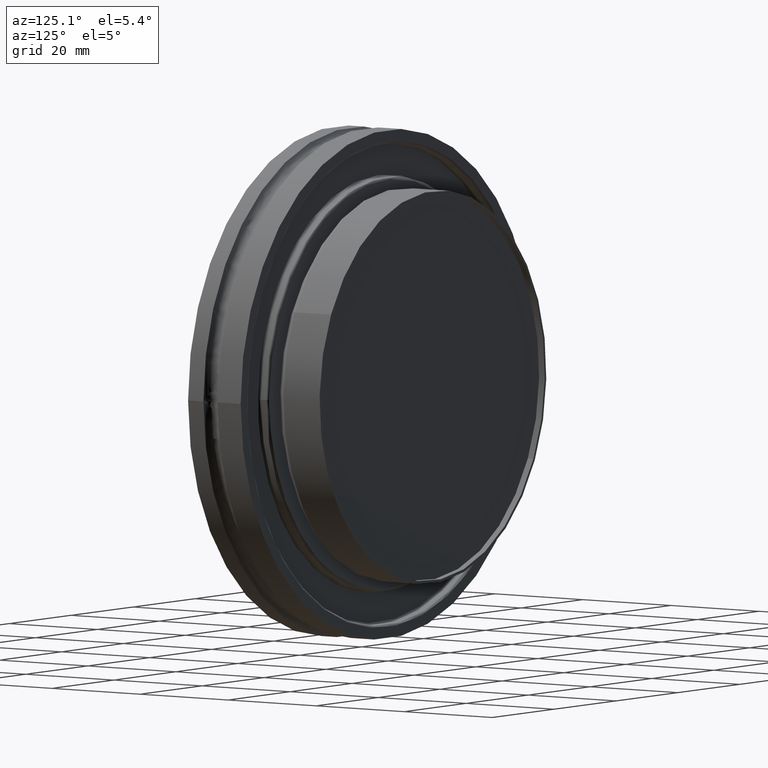
[diagram: clean part render]
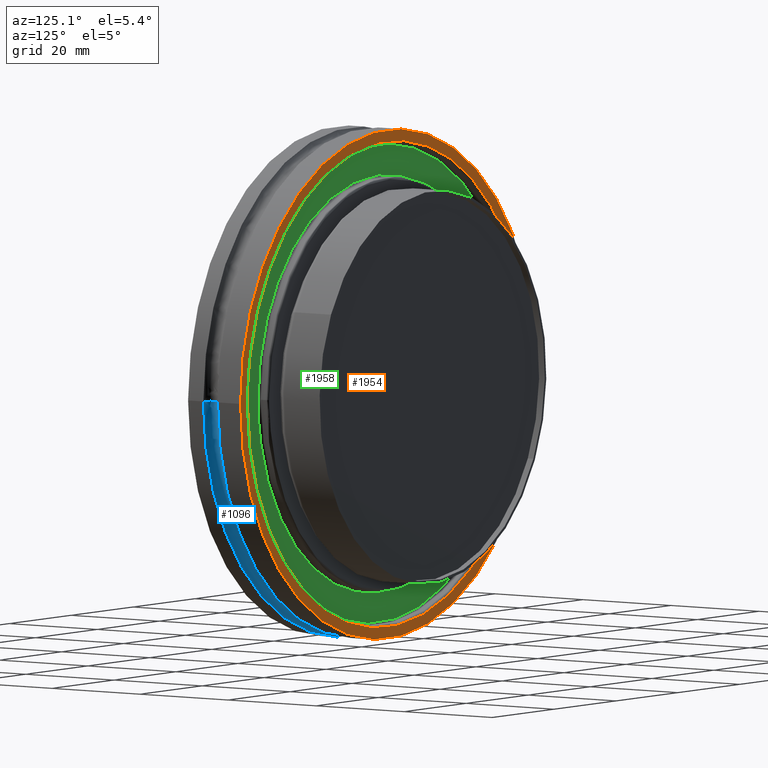
[diagram: same view with three faces highlighted in distinct colors, each labeled with its STEP entity id]
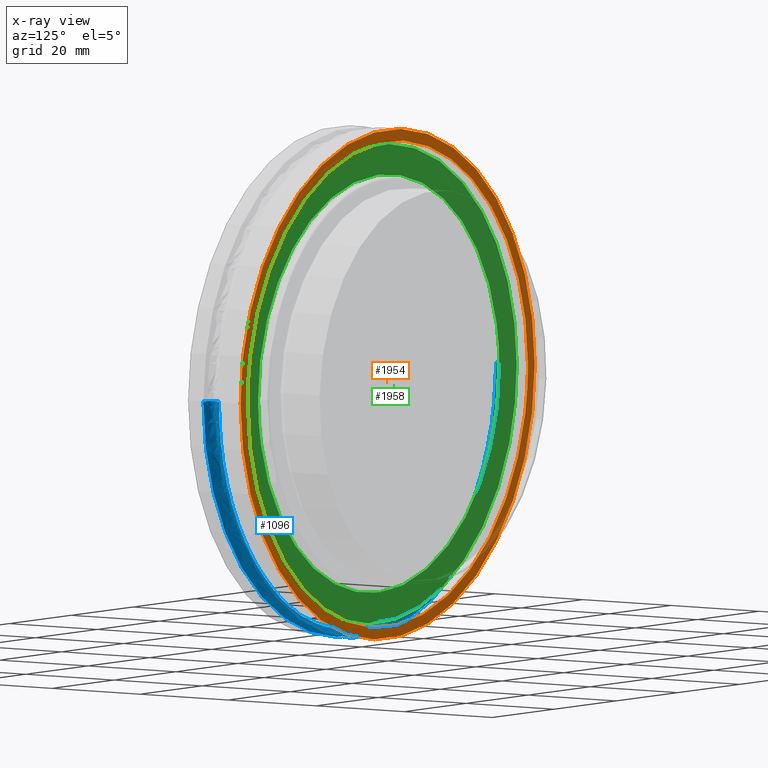
[diagram: x-ray of the same camera — body ghosted, the three highlighted faces saturated]
A machine part, auxiliary view with three faces highlighted in distinct colors.
The next image is the same camera in x-ray (body ghosted, the three faces saturated) — at least one of them is partly hidden behind the body in this view.
Their STEP definitions:

[orange] entity #1954 — the highlighted planar face has unit normal (0, -1, -0).
#50 = AXIS2_PLACEMENT_3D ( 'NONE', #1326, #1319, #1318 ) ;
#81 = FACE_BOUND ( 'NONE', #492, .T. ) ;
#84 = FACE_OUTER_BOUND ( 'NONE', #501, .T. ) ;
#204 = CIRCLE ( 'NONE', #611, 1.870000000000000100 ) ;
#271 = CIRCLE ( 'NONE', #660, 1.870000000000000100 ) ;
#312 = ORIENTED_EDGE ( 'NONE', *, *, #568, .F. ) ;
#313 = ORIENTED_EDGE ( 'NONE', *, *, #715, .F. ) ;
#314 = ORIENTED_EDGE ( 'NONE', *, *, #576, .F. ) ;
#315 = ORIENTED_EDGE ( 'NONE', *, *, #569, .F. ) ;
#484 = VERTEX_POINT ( 'NONE', #918 ) ;
#490 = VERTEX_POINT ( 'NONE', #828 ) ;
#492 = EDGE_LOOP ( 'NONE', ( #314, #315 ) ) ;
#501 = EDGE_LOOP ( 'NONE', ( #312, #313 ) ) ;
#568 = EDGE_CURVE ( 'NONE', #2015, #2003, #271, .T. ) ;
#569 = EDGE_CURVE ( 'NONE', #490, #484, #1128, .T. ) ;
#576 = EDGE_CURVE ( 'NONE', #484, #490, #1125, .T. ) ;
#611 = AXIS2_PLACEMENT_3D ( 'NONE', #1414, #1405, #1407 ) ;
#660 = AXIS2_PLACEMENT_3D ( 'NONE', #764, #762, #929 ) ;
#715 = EDGE_CURVE ( 'NONE', #2003, #2015, #204, .T. ) ;
#762 = DIRECTION ( 'NONE',  ( -0.0000000000000000000, -1.000000000000000000, -0.0000000000000000000 ) ) ;
#764 = CARTESIAN_POINT ( 'NONE',  ( 0.0000000000000000000, 0.2350000000000000100, 0.0000000000000000000 ) ) ;
#777 = CARTESIAN_POINT ( 'NONE',  ( 1.784999999999999500, 0.2350000000000000400, -3.569999999999999400 ) ) ;
#778 = CARTESIAN_POINT ( 'NONE',  ( 1.784999999999999900, 0.2350000000000000100, -2.185994536478025700E-016 ) ) ;
#817 = CARTESIAN_POINT ( 'NONE',  ( 1.784999999999999900, 0.2350000000000000100, -2.185994536478025700E-016 ) ) ;
#818 = CARTESIAN_POINT ( 'NONE',  ( 1.785000000000000800, 0.2350000000000000400, 3.569999999999999400 ) ) ;
#822 = CARTESIAN_POINT ( 'NONE',  ( -1.784999999999999900, 0.2350000000000000100, 0.0000000000000000000 ) ) ;
#828 = CARTESIAN_POINT ( 'NONE',  ( 1.784999999999999900, 0.2350000000000000100, -2.185994536478025700E-016 ) ) ;
#918 = CARTESIAN_POINT ( 'NONE',  ( -1.784999999999999900, 0.2350000000000000100, 0.0000000000000000000 ) ) ;
#923 = CARTESIAN_POINT ( 'NONE',  ( -1.785000000000000100, 0.2350000000000000400, -3.569999999999999400 ) ) ;
#929 = DIRECTION ( 'NONE',  ( 1.000000000000000000, 0.0000000000000000000, 0.0000000000000000000 ) ) ;
#951 = CARTESIAN_POINT ( 'NONE',  ( -1.785000000000000100, 0.2350000000000000400, 3.569999999999999400 ) ) ;
#1070 = CARTESIAN_POINT ( 'NONE',  ( -1.784999999999999900, 0.2350000000000000100, 0.0000000000000000000 ) ) ;
#1125 =( BOUNDED_CURVE ( )  B_SPLINE_CURVE ( 3, ( #1070, #951, #818, #817 ),
 .UNSPECIFIED., .F., .F. ) 
 B_SPLINE_CURVE_WITH_KNOTS ( ( 4, 4 ),
 ( 0.0000000000000000000, 0.5000000000000000000 ),
 .UNSPECIFIED. ) 
 CURVE ( )  GEOMETRIC_REPRESENTATION_ITEM ( )  RATIONAL_B_SPLINE_CURVE ( ( 1.000000000000000000, 0.3333333333333333700, 0.3333333333333333700, 1.000000000000000000 ) ) 
 REPRESENTATION_ITEM ( '' )  );
#1128 =( BOUNDED_CURVE ( )  B_SPLINE_CURVE ( 3, ( #778, #777, #923, #822 ),
 .UNSPECIFIED., .F., .F. ) 
 B_SPLINE_CURVE_WITH_KNOTS ( ( 4, 4 ),
 ( 0.5000000000000000000, 1.000000000000000000 ),
 .UNSPECIFIED. ) 
 CURVE ( )  GEOMETRIC_REPRESENTATION_ITEM ( )  RATIONAL_B_SPLINE_CURVE ( ( 1.000000000000000000, 0.3333333333333333700, 0.3333333333333333700, 1.000000000000000000 ) ) 
 REPRESENTATION_ITEM ( '' )  );
#1163 = CARTESIAN_POINT ( 'NONE',  ( 1.870000000000000100, 0.2350000000000000100, 0.0000000000000000000 ) ) ;
#1175 = CARTESIAN_POINT ( 'NONE',  ( -1.870000000000000100, 0.2350000000000000100, -2.290089514405550600E-016 ) ) ;
#1318 = DIRECTION ( 'NONE',  ( -1.000000000000000000, 0.0000000000000000000, -0.0000000000000000000 ) ) ;
#1319 = DIRECTION ( 'NONE',  ( 0.0000000000000000000, -1.000000000000000000, -0.0000000000000000000 ) ) ;
#1322 = PLANE ( 'NONE',  #50 ) ;
#1326 = CARTESIAN_POINT ( 'NONE',  ( 0.0000000000000000000, 0.2350000000000000100, 0.0000000000000000000 ) ) ;
#1405 = DIRECTION ( 'NONE',  ( -0.0000000000000000000, -1.000000000000000000, -0.0000000000000000000 ) ) ;
#1407 = DIRECTION ( 'NONE',  ( 1.000000000000000000, 0.0000000000000000000, 0.0000000000000000000 ) ) ;
#1414 = CARTESIAN_POINT ( 'NONE',  ( 0.0000000000000000000, 0.2350000000000000100, 0.0000000000000000000 ) ) ;
#1954 = ADVANCED_FACE ( 'NONE', ( #84, #81 ), #1322, .F. ) ;
#2003 = VERTEX_POINT ( 'NONE', #1175 ) ;
#2015 = VERTEX_POINT ( 'NONE', #1163 ) ;

[blue] entity #1096 — the highlighted face is a freeform B-spline surface patch.
#122 = FACE_OUTER_BOUND ( 'NONE', #494, .T. ) ;
#249 = CIRCLE ( 'NONE', #633, 0.06300000000000012500 ) ;
#253 = CIRCLE ( 'NONE', #639, 1.870000000000000100 ) ;
#258 = CIRCLE ( 'NONE', #644, 0.06300000000000012500 ) ;
#276 = CIRCLE ( 'NONE', #657, 1.870000000000000300 ) ;
#485 = VERTEX_POINT ( 'NONE', #840 ) ;
#489 = VERTEX_POINT ( 'NONE', #820 ) ;
#494 = EDGE_LOOP ( 'NONE', ( #541, #542, #544, #545 ) ) ;
#541 = ORIENTED_EDGE ( 'NONE', *, *, #673, .F. ) ;
#542 = ORIENTED_EDGE ( 'NONE', *, *, #668, .T. ) ;
#544 = ORIENTED_EDGE ( 'NONE', *, *, #582, .F. ) ;
#545 = ORIENTED_EDGE ( 'NONE', *, *, #680, .F. ) ;
#582 = EDGE_CURVE ( 'NONE', #1973, #1974, #276, .T. ) ;
#633 = AXIS2_PLACEMENT_3D ( 'NONE', #2314, #2313, #2312 ) ;
#639 = AXIS2_PLACEMENT_3D ( 'NONE', #2482, #2481, #2480 ) ;
#644 = AXIS2_PLACEMENT_3D ( 'NONE', #758, #757, #756 ) ;
#657 = AXIS2_PLACEMENT_3D ( 'NONE', #809, #808, #805 ) ;
#668 = EDGE_CURVE ( 'NONE', #485, #1974, #258, .T. ) ;
#673 = EDGE_CURVE ( 'NONE', #485, #489, #253, .T. ) ;
#680 = EDGE_CURVE ( 'NONE', #489, #1973, #249, .T. ) ;
#756 = DIRECTION ( 'NONE',  ( 1.000000000000000000, 0.0000000000000000000, -1.224646799147353200E-016 ) ) ;
#757 = DIRECTION ( 'NONE',  ( 1.224646799147353200E-016, 0.0000000000000000000, 1.000000000000000000 ) ) ;
#758 = CARTESIAN_POINT ( 'NONE',  ( 1.870000000000000100, -0.03500000000000003800, -2.290089514405550600E-016 ) ) ;
#805 = DIRECTION ( 'NONE',  ( -1.000000000000000000, 0.0000000000000000000, 0.0000000000000000000 ) ) ;
#808 = DIRECTION ( 'NONE',  ( 0.0000000000000000000, -1.000000000000000000, 0.0000000000000000000 ) ) ;
#809 = CARTESIAN_POINT ( 'NONE',  ( 0.0000000000000000000, -0.09800000000000005900, 0.0000000000000000000 ) ) ;
#820 = CARTESIAN_POINT ( 'NONE',  ( -1.870000000000000100, 0.02799999999999994900, -2.290089514405550600E-016 ) ) ;
#840 = CARTESIAN_POINT ( 'NONE',  ( 1.870000000000000100, 0.02799999999999994900, 0.0000000000000000000 ) ) ;
#1096 = ADVANCED_FACE ( 'NONE', ( #122 ), #1111, .F. ) ;
#1111 =( BOUNDED_SURFACE ( )  B_SPLINE_SURFACE ( 3, 3, ( 
 ( #1532, #1533, #1507, #1504 ),
 ( #1503, #1502, #1501, #1500 ),
 ( #1499, #1498, #1495, #1494 ),
 ( #1493, #1490, #1489, #1488 ) ),
 .UNSPECIFIED., .F., .F., .F. ) 
 B_SPLINE_SURFACE_WITH_KNOTS ( ( 4, 4 ),
 ( 4, 4 ),
 ( 0.0000000000000000000, 1.000000000000000000 ),
 ( 0.0000000000000000000, 1.000000000000000000 ),
 .UNSPECIFIED. ) 
 GEOMETRIC_REPRESENTATION_ITEM ( )  RATIONAL_B_SPLINE_SURFACE ( (
 ( 1.000000000000000000, 0.3333333333333334300, 0.3333333333333334300, 1.000000000000000000),
 ( 0.3333333333333289300, 0.1111111111111096800, 0.1111111111111096800, 0.3333333333333289300),
 ( 0.3333333333333289300, 0.1111111111111096800, 0.1111111111111096800, 0.3333333333333289300),
 ( 1.000000000000000000, 0.3333333333333334300, 0.3333333333333334300, 1.000000000000000000) ) ) 
 REPRESENTATION_ITEM ( '' )  SURFACE ( )  );
#1202 = CARTESIAN_POINT ( 'NONE',  ( 1.870000000000000300, -0.09800000000000005900, -2.290089514405550600E-016 ) ) ;
#1203 = CARTESIAN_POINT ( 'NONE',  ( -1.870000000000000600, -0.09800000000000005900, -2.290089514405551100E-016 ) ) ;
#1488 = CARTESIAN_POINT ( 'NONE',  ( 1.870000000000000600, -0.09800000000000005900, -1.148318398378104800E-018 ) ) ;
#1489 = CARTESIAN_POINT ( 'NONE',  ( 1.870000000000000800, -0.09800000000000004500, -3.740000000000000200 ) ) ;
#1490 = CARTESIAN_POINT ( 'NONE',  ( -1.870000000000000100, -0.09800000000000004500, -3.740000000000000200 ) ) ;
#1493 = CARTESIAN_POINT ( 'NONE',  ( -1.870000000000000600, -0.09800000000000005900, -2.278606330421770000E-016 ) ) ;
#1494 = CARTESIAN_POINT ( 'NONE',  ( 1.743999999999998900, -0.09800000000000115600, -1.070945073139790800E-018 ) ) ;
#1495 = CARTESIAN_POINT ( 'NONE',  ( 1.743999999999998900, -0.09800000000000112800, -3.487999999999997300 ) ) ;
#1498 = CARTESIAN_POINT ( 'NONE',  ( -1.743999999999998400, -0.09800000000000112800, -3.487999999999997300 ) ) ;
#1499 = CARTESIAN_POINT ( 'NONE',  ( -1.743999999999998900, -0.09800000000000115600, -2.125074566981584500E-016 ) ) ;
#1500 = CARTESIAN_POINT ( 'NONE',  ( 1.743999999999998900, 0.02800000000000050400, -1.070945073139821000E-018 ) ) ;
#1501 = CARTESIAN_POINT ( 'NONE',  ( 1.743999999999998700, 0.02800000000000050000, -3.487999999999996900 ) ) ;
#1502 = CARTESIAN_POINT ( 'NONE',  ( -1.743999999999998200, 0.02800000000000050000, -3.487999999999996900 ) ) ;
#1503 = CARTESIAN_POINT ( 'NONE',  ( -1.743999999999998900, 0.02800000000000050400, -2.125074566981584300E-016 ) ) ;
#1504 = CARTESIAN_POINT ( 'NONE',  ( 1.870000000000000300, 0.02799999999999996900, -1.148318398378104800E-018 ) ) ;
#1507 = CARTESIAN_POINT ( 'NONE',  ( 1.870000000000000100, 0.02799999999999996900, -3.739999999999999300 ) ) ;
#1532 = CARTESIAN_POINT ( 'NONE',  ( -1.870000000000000300, 0.02799999999999996900, -2.278606330421769500E-016 ) ) ;
#1533 = CARTESIAN_POINT ( 'NONE',  ( -1.869999999999999700, 0.02799999999999996900, -3.739999999999999300 ) ) ;
#1973 = VERTEX_POINT ( 'NONE', #1203 ) ;
#1974 = VERTEX_POINT ( 'NONE', #1202 ) ;
#2312 = DIRECTION ( 'NONE',  ( -1.000000000000000000, 0.0000000000000000000, 0.0000000000000000000 ) ) ;
#2313 = DIRECTION ( 'NONE',  ( 0.0000000000000000000, 0.0000000000000000000, -1.000000000000000000 ) ) ;
#2314 = CARTESIAN_POINT ( 'NONE',  ( -1.870000000000000100, -0.03500000000000003800, 0.0000000000000000000 ) ) ;
#2480 = DIRECTION ( 'NONE',  ( 1.000000000000000000, 0.0000000000000000000, 0.0000000000000000000 ) ) ;
#2481 = DIRECTION ( 'NONE',  ( 0.0000000000000000000, 1.000000000000000000, 0.0000000000000000000 ) ) ;
#2482 = CARTESIAN_POINT ( 'NONE',  ( 0.0000000000000000000, 0.02799999999999994900, 0.0000000000000000000 ) ) ;

[green] entity #1958 — the highlighted planar face has unit normal (-0, 1, 0).
#42 = AXIS2_PLACEMENT_3D ( 'NONE', #1292, #1269, #1268 ) ;
#74 = FACE_BOUND ( 'NONE', #505, .T. ) ;
#85 = FACE_OUTER_BOUND ( 'NONE', #504, .T. ) ;
#389 = ORIENTED_EDGE ( 'NONE', *, *, #575, .T. ) ;
#390 = ORIENTED_EDGE ( 'NONE', *, *, #672, .T. ) ;
#392 = ORIENTED_EDGE ( 'NONE', *, *, #676, .T. ) ;
#393 = ORIENTED_EDGE ( 'NONE', *, *, #571, .T. ) ;
#433 = VERTEX_POINT ( 'NONE', #819 ) ;
#471 = VERTEX_POINT ( 'NONE', #862 ) ;
#478 = VERTEX_POINT ( 'NONE', #847 ) ;
#488 = VERTEX_POINT ( 'NONE', #830 ) ;
#504 = EDGE_LOOP ( 'NONE', ( #392, #393 ) ) ;
#505 = EDGE_LOOP ( 'NONE', ( #389, #390 ) ) ;
#571 = EDGE_CURVE ( 'NONE', #433, #488, #1127, .T. ) ;
#575 = EDGE_CURVE ( 'NONE', #471, #478, #1126, .T. ) ;
#672 = EDGE_CURVE ( 'NONE', #478, #471, #1123, .T. ) ;
#676 = EDGE_CURVE ( 'NONE', #488, #433, #1122, .T. ) ;
#759 = CARTESIAN_POINT ( 'NONE',  ( -1.535000638443975600, 0.1550000000000011400, -0.04693712124131669400 ) ) ;
#766 = CARTESIAN_POINT ( 'NONE',  ( -1.534999999999999900, 0.1550000000000013600, -1.879832836691187100E-016 ) ) ;
#790 = CARTESIAN_POINT ( 'NONE',  ( 1.534998722829615100, 0.1550000000000011900, 0.04694747376606166900 ) ) ;
#812 = CARTESIAN_POINT ( 'NONE',  ( 1.534999999999999900, 0.1550000000000013600, 0.0000000000000000000 ) ) ;
#819 = CARTESIAN_POINT ( 'NONE',  ( -1.754999999999999900, 0.1550000000000013600, -2.149255132503604700E-016 ) ) ;
#821 = CARTESIAN_POINT ( 'NONE',  ( -1.534999999999999900, 0.1550000000000013600, -1.879832836691187100E-016 ) ) ;
#823 = CARTESIAN_POINT ( 'NONE',  ( -1.534998723112048500, 0.1550000000000011400, 0.09387424248263109800 ) ) ;
#824 = CARTESIAN_POINT ( 'NONE',  ( -1.526456636240389500, 0.1550000000000011400, 0.1870064709476974800 ) ) ;
#825 = CARTESIAN_POINT ( 'NONE',  ( -1.509240280396621400, 0.1550000000000012200, 0.2800344324409621000 ) ) ;
#826 = CARTESIAN_POINT ( 'NONE',  ( -1.509090038596028600, 0.1550000000000011900, 0.2808430405355856800 ) ) ;
#827 = CARTESIAN_POINT ( 'NONE',  ( -1.508804640721078900, 0.1550000000000012200, 0.2823723053683944200 ) ) ;
#829 = CARTESIAN_POINT ( 'NONE',  ( -1.508374847957114900, 0.1550000000000011400, 0.2846657123674722900 ) ) ;
#830 = CARTESIAN_POINT ( 'NONE',  ( 1.755000000000000300, 0.1550000000000013600, 0.0000000000000000000 ) ) ;
#831 = CARTESIAN_POINT ( 'NONE',  ( -1.507360126513771300, 0.1550000000000011900, 0.2900135636143778600 ) ) ;
#832 = CARTESIAN_POINT ( 'NONE',  ( -1.505283196984032300, 0.1550000000000011400, 0.3006955391044132100 ) ) ;
#833 = CARTESIAN_POINT ( 'NONE',  ( -1.500939391352343400, 0.1550000000000011900, 0.3220045820693841500 ) ) ;
#834 = CARTESIAN_POINT ( 'NONE',  ( -1.491491993800130500, 0.1550000000000012200, 0.3644030359389250900 ) ) ;
#835 = CARTESIAN_POINT ( 'NONE',  ( -1.469558053540352100, 0.1550000000000012200, 0.4483214154364036900 ) ) ;
#836 = CARTESIAN_POINT ( 'NONE',  ( -1.445547570194227700, 0.1550000000000011900, 0.5187454065914932600 ) ) ;
#837 = CARTESIAN_POINT ( 'NONE',  ( -1.426652463128849500, 0.1550000000000011900, 0.5664716283207866800 ) ) ;
#838 = CARTESIAN_POINT ( 'NONE',  ( -1.426029206323873300, 0.1550000000000012500, 0.5680389783194344000 ) ) ;
#841 = CARTESIAN_POINT ( 'NONE',  ( -1.424826570149066300, 0.1550000000000012200, 0.5710490430309413900 ) ) ;
#842 = CARTESIAN_POINT ( 'NONE',  ( -1.423015815519004500, 0.1550000000000011900, 0.5755606056677493600 ) ) ;
#843 = CARTESIAN_POINT ( 'NONE',  ( -1.418743118807245000, 0.1550000000000011900, 0.5860628441404668300 ) ) ;
#845 = CARTESIAN_POINT ( 'NONE',  ( -1.410007315083927400, 0.1550000000000011900, 0.6069683570332276000 ) ) ;
#846 = CARTESIAN_POINT ( 'NONE',  ( -1.391774066438096200, 0.1550000000000012200, 0.6483835266080575400 ) ) ;
#847 = CARTESIAN_POINT ( 'NONE',  ( -1.534999999999999900, 0.1550000000000013600, -1.879832836691187100E-016 ) ) ;
#848 = CARTESIAN_POINT ( 'NONE',  ( -1.352261004349645000, 0.1550000000000011900, 0.7296304409149473300 ) ) ;
#849 = CARTESIAN_POINT ( 'NONE',  ( -1.313169982907909800, 0.1550000000000012200, 0.7965562105903901700 ) ) ;
#851 = CARTESIAN_POINT ( 'NONE',  ( -1.283014242646424600, 0.1550000000000011900, 0.8426801439996810500 ) ) ;
#852 = CARTESIAN_POINT ( 'NONE',  ( -1.281155062117545200, 0.1550000000000012500, 0.8455044327026405300 ) ) ;
#853 = CARTESIAN_POINT ( 'NONE',  ( -1.277497219955283600, 0.1550000000000011900, 0.8510216993136174900 ) ) ;
#854 = CARTESIAN_POINT ( 'NONE',  ( -1.271985662152713500, 0.1550000000000011900, 0.8592774045846117700 ) ) ;
#855 = CARTESIAN_POINT ( 'NONE',  ( -1.258951798699136500, 0.1550000000000011900, 0.8783993543653061400 ) ) ;
#856 = CARTESIAN_POINT ( 'NONE',  ( -1.232189824135005600, 0.1550000000000011900, 0.9160778038535172300 ) ) ;
#857 = CARTESIAN_POINT ( 'NONE',  ( -1.175888884378826200, 0.1550000000000011400, 0.9891729025372393300 ) ) ;
#860 = CARTESIAN_POINT ( 'NONE',  ( -1.122870380654245000, 0.1550000000000011400, 1.047948472335797900 ) ) ;
#861 = CARTESIAN_POINT ( 'NONE',  ( -1.010485966055559800, 0.1550000000000012500, 1.160329782692455700 ) ) ;
#862 = CARTESIAN_POINT ( 'NONE',  ( 1.534999999999999900, 0.1550000000000013600, 0.0000000000000000000 ) ) ;
#864 = CARTESIAN_POINT ( 'NONE',  ( -0.9286521062598569500, 0.1550000000000011900, 1.226809396247065000 ) ) ;
#865 = CARTESIAN_POINT ( 'NONE',  ( -0.8371955609832666400, 0.1550000000000012200, 1.286599944516678700 ) ) ;
#866 = CARTESIAN_POINT ( 'NONE',  ( -0.8345344006151488300, 0.1550000000000012200, 1.288327557572854600 ) ) ;
#867 = CARTESIAN_POINT ( 'NONE',  ( -0.8290877641170617500, 0.1550000000000011900, 1.291839766769823800 ) ) ;
#868 = CARTESIAN_POINT ( 'NONE',  ( -0.8209037437028886600, 0.1550000000000011900, 1.297080841910023900 ) ) ;
#869 = CARTESIAN_POINT ( 'NONE',  ( -0.8017092364005231600, 0.1550000000000011400, 1.309119346650375700 ) ) ;
#870 = CARTESIAN_POINT ( 'NONE',  ( -0.7629263831186096100, 0.1550000000000011400, 1.332433673783952800 ) ) ;
#871 = CARTESIAN_POINT ( 'NONE',  ( -0.6837853218460530100, 0.1550000000000011900, 1.376011598662599800 ) ) ;
#872 = CARTESIAN_POINT ( 'NONE',  ( -0.6132495183974685500, 0.1550000000000012200, 1.408134283892570800 ) ) ;
#873 = CARTESIAN_POINT ( 'NONE',  ( -0.5635183748268506300, 0.1550000000000011400, 1.427821628325775900 ) ) ;
#874 = CARTESIAN_POINT ( 'NONE',  ( -0.5621314061802631400, 0.1550000000000011100, 1.428368175971749300 ) ) ;
#875 = CARTESIAN_POINT ( 'NONE',  ( -0.5592354915772457200, 0.1550000000000012200, 1.429504520405595800 ) ) ;
#876 = CARTESIAN_POINT ( 'NONE',  ( -0.5548896780669141400, 0.1550000000000011900, 1.431202247649294700 ) ) ;
#877 = CARTESIAN_POINT ( 'NONE',  ( -0.5447358553021703900, 0.1550000000000011900, 1.435116085368421500 ) ) ;
#878 = CARTESIAN_POINT ( 'NONE',  ( -0.5243738448101369400, 0.1550000000000011900, 1.442753657408668800 ) ) ;
#879 = CARTESIAN_POINT ( 'NONE',  ( -0.4834323639758846800, 0.1550000000000011900, 1.457268387897125500 ) ) ;
#880 = CARTESIAN_POINT ( 'NONE',  ( -0.4006795629066354200, 0.1550000000000011900, 1.483256194505898000 ) ) ;
#881 = CARTESIAN_POINT ( 'NONE',  ( -0.3282574373031505500, 0.1550000000000012200, 1.500317192682318200 ) ) ;
#882 = CARTESIAN_POINT ( 'NONE',  ( -0.2777837807073144600, 0.1550000000000012200, 1.509656757639351600 ) ) ;
#883 = CARTESIAN_POINT ( 'NONE',  ( -0.2764276408070816000, 0.1550000000000012200, 1.509905575045959300 ) ) ;
#884 = CARTESIAN_POINT ( 'NONE',  ( -0.2735414323329084000, 0.1550000000000011900, 1.510431152226250400 ) ) ;
#885 = CARTESIAN_POINT ( 'NONE',  ( -0.2692115557930364100, 0.1550000000000011900, 1.511213260650460500 ) ) ;
#886 = CARTESIAN_POINT ( 'NONE',  ( -0.2591045637330528500, 0.1550000000000011400, 1.512994378883364400 ) ) ;
#887 = CARTESIAN_POINT ( 'NONE',  ( -0.2388747924119502800, 0.1550000000000011400, 1.516381409654825200 ) ) ;
#888 = CARTESIAN_POINT ( 'NONE',  ( -0.1983521009652158800, 0.1550000000000011900, 1.522454648420360900 ) ) ;
#889 = CARTESIAN_POINT ( 'NONE',  ( -0.1170541228536143400, 0.1550000000000011400, 1.531797834841887000 ) ) ;
#890 = CARTESIAN_POINT ( 'NONE',  ( -0.04693712124116310200, 0.1550000000000012200, 1.535000638443975600 ) ) ;
#891 = CARTESIAN_POINT ( 'NONE',  ( 0.09387424248232530100, 0.1550000000000012200, 1.534998723112048300 ) ) ;
#892 = CARTESIAN_POINT ( 'NONE',  ( 0.1870064709477726500, 0.1550000000000012200, 1.526456636240390600 ) ) ;
#893 = CARTESIAN_POINT ( 'NONE',  ( 0.2800344324409615400, 0.1550000000000011900, 1.509240280396621400 ) ) ;
#894 = CARTESIAN_POINT ( 'NONE',  ( 0.2808430405356165900, 0.1550000000000011400, 1.509090038596022200 ) ) ;
#895 = CARTESIAN_POINT ( 'NONE',  ( 0.2823723053684558700, 0.1550000000000012200, 1.508804640721066700 ) ) ;
#896 = CARTESIAN_POINT ( 'NONE',  ( 0.2846657123675794300, 0.1550000000000011400, 1.508374847957094400 ) ) ;
#897 = CARTESIAN_POINT ( 'NONE',  ( 0.2900135636145888500, 0.1550000000000011400, 1.507360126513731300 ) ) ;
#898 = CARTESIAN_POINT ( 'NONE',  ( 0.3006955391048215000, 0.1550000000000012200, 1.505283196983953500 ) ) ;
#899 = CARTESIAN_POINT ( 'NONE',  ( 0.3220045820701455400, 0.1550000000000011900, 1.500939391352197300 ) ) ;
#900 = CARTESIAN_POINT ( 'NONE',  ( 0.3644030359402299900, 0.1550000000000011900, 1.491491993799878300 ) ) ;
#901 = CARTESIAN_POINT ( 'NONE',  ( 0.4483214154381443000, 0.1550000000000011900, 1.469558053540015900 ) ) ;
#902 = CARTESIAN_POINT ( 'NONE',  ( 0.5187454065924884700, 0.1550000000000012200, 1.445547570194035900 ) ) ;
#903 = CARTESIAN_POINT ( 'NONE',  ( 0.5664716283207557000, 0.1550000000000011900, 1.426652463128855500 ) ) ;
#904 = CARTESIAN_POINT ( 'NONE',  ( 0.5680389783194588200, 0.1550000000000011900, 1.426029206323850200 ) ) ;
#905 = CARTESIAN_POINT ( 'NONE',  ( 0.5710490430309891300, 0.1550000000000011400, 1.424826570149020400 ) ) ;
#906 = CARTESIAN_POINT ( 'NONE',  ( 0.5755606056678321800, 0.1550000000000011900, 1.423015815518927200 ) ) ;
#907 = CARTESIAN_POINT ( 'NONE',  ( 0.5860628441406262600, 0.1550000000000012200, 1.418743118807095800 ) ) ;
#908 = CARTESIAN_POINT ( 'NONE',  ( 0.6069683570335250300, 0.1550000000000011900, 1.410007315083648500 ) ) ;
#909 = CARTESIAN_POINT ( 'NONE',  ( 0.6483835266085675700, 0.1550000000000011900, 1.391774066437617700 ) ) ;
#910 = CARTESIAN_POINT ( 'NONE',  ( 0.7296304409156267900, 0.1550000000000011900, 1.352261004349007300 ) ) ;
#911 = CARTESIAN_POINT ( 'NONE',  ( 0.7965562105907780800, 0.1550000000000012200, 1.313169982907545800 ) ) ;
#912 = CARTESIAN_POINT ( 'NONE',  ( 0.8426801439996569600, 0.1550000000000011900, 1.283014242646447500 ) ) ;
#913 = CARTESIAN_POINT ( 'NONE',  ( 0.8455044327026611800, 0.1550000000000011900, 1.281155062117546000 ) ) ;
#914 = CARTESIAN_POINT ( 'NONE',  ( 0.8510216993136579000, 0.1550000000000012500, 1.277497219955284500 ) ) ;
#915 = CARTESIAN_POINT ( 'NONE',  ( 0.8592774045846802700, 0.1550000000000011900, 1.271985662152714100 ) ) ;
#916 = CARTESIAN_POINT ( 'NONE',  ( 0.8783993543654337000, 0.1550000000000011900, 1.258951798699139900 ) ) ;
#917 = CARTESIAN_POINT ( 'NONE',  ( 0.9160778038537361600, 0.1550000000000011900, 1.232189824135010400 ) ) ;
#919 = CARTESIAN_POINT ( 'NONE',  ( 0.9891729025375313200, 0.1550000000000011900, 1.175888884378833300 ) ) ;
#920 = CARTESIAN_POINT ( 'NONE',  ( 1.047948472335964700, 0.1550000000000011400, 1.122870380654248600 ) ) ;
#921 = CARTESIAN_POINT ( 'NONE',  ( 1.160329782692120400, 0.1550000000000012200, 1.010485966055553900 ) ) ;
#922 = CARTESIAN_POINT ( 'NONE',  ( 1.226809396247709300, 0.1550000000000012500, 0.9286521062588718500 ) ) ;
#924 = CARTESIAN_POINT ( 'NONE',  ( 1.286599944516658500, 0.1550000000000012200, 0.8371955609832975000 ) ) ;
#925 = CARTESIAN_POINT ( 'NONE',  ( 1.288327557572745500, 0.1550000000000011400, 0.8345344006153148100 ) ) ;
#926 = CARTESIAN_POINT ( 'NONE',  ( 1.291839766769612000, 0.1550000000000012200, 0.8290877641173863800 ) ) ;
#927 = CARTESIAN_POINT ( 'NONE',  ( 1.297080841909660900, 0.1550000000000011900, 0.8209037437034431000 ) ) ;
#928 = CARTESIAN_POINT ( 'NONE',  ( 1.309119346649699800, 0.1550000000000012200, 0.8017092364015581100 ) ) ;
#930 = CARTESIAN_POINT ( 'NONE',  ( 1.332433673782794000, 0.1550000000000012500, 0.7629263831203840800 ) ) ;
#931 = CARTESIAN_POINT ( 'NONE',  ( 1.376011598661053700, 0.1550000000000011900, 0.6837853218484187800 ) ) ;
#932 = CARTESIAN_POINT ( 'NONE',  ( 1.408134283891686800, 0.1550000000000011900, 0.6132495183988204700 ) ) ;
#933 = CARTESIAN_POINT ( 'NONE',  ( 1.427821628325804100, 0.1550000000000012500, 0.5635183748268086700 ) ) ;
#934 = CARTESIAN_POINT ( 'NONE',  ( 1.428368175971688900, 0.1550000000000011900, 0.5621314061804686400 ) ) ;
#935 = CARTESIAN_POINT ( 'NONE',  ( 1.429504520405476200, 0.1550000000000012200, 0.5592354915776519600 ) ) ;
#936 = CARTESIAN_POINT ( 'NONE',  ( 1.431202247649087300, 0.1550000000000011400, 0.5548896780676163500 ) ) ;
#937 = CARTESIAN_POINT ( 'NONE',  ( 1.435116085368019800, 0.1550000000000011900, 0.5447358553035299700 ) ) ;
#938 = CARTESIAN_POINT ( 'NONE',  ( 1.442753657407919400, 0.1550000000000011900, 0.5243738448126747900 ) ) ;
#939 = CARTESIAN_POINT ( 'NONE',  ( 1.457268387895841900, 0.1550000000000011900, 0.4834323639802347600 ) ) ;
#940 = CARTESIAN_POINT ( 'NONE',  ( 1.483256194504187100, 0.1550000000000012200, 0.4006795629124370000 ) ) ;
#942 = CARTESIAN_POINT ( 'NONE',  ( 1.500317192681339200, 0.1550000000000011400, 0.3282574373064656700 ) ) ;
#943 = CARTESIAN_POINT ( 'NONE',  ( 1.509656757639381800, 0.1550000000000012500, 0.2777837807072105500 ) ) ;
#944 = CARTESIAN_POINT ( 'NONE',  ( 1.509905456255420200, 0.1550000000000012200, 0.2764282827849435800 ) ) ;
#945 = CARTESIAN_POINT ( 'NONE',  ( 1.510430917451247800, 0.1550000000000011900, 0.2735427011238013000 ) ) ;
#946 = CARTESIAN_POINT ( 'NONE',  ( 1.511212854704839100, 0.1550000000000011900, 0.2692137496386445800 ) ) ;
#947 = CARTESIAN_POINT ( 'NONE',  ( 1.512993593182161200, 0.1550000000000011900, 0.2591088098858426700 ) ) ;
#948 = CARTESIAN_POINT ( 'NONE',  ( 1.516379943012579500, 0.1550000000000011900, 0.2388827185638265900 ) ) ;
#949 = CARTESIAN_POINT ( 'NONE',  ( 1.522452134176511400, 0.1550000000000011900, 0.1983656886541455600 ) ) ;
#950 = CARTESIAN_POINT ( 'NONE',  ( 1.531794482516755500, 0.1550000000000011900, 0.1170722397721882700 ) ) ;
#952 = CARTESIAN_POINT ( 'NONE',  ( 1.755000000000000300, 0.1550000000000013600, 0.0000000000000000000 ) ) ;
#953 = CARTESIAN_POINT ( 'NONE',  ( 1.755002553991990200, 0.1550000000000012200, 0.1073376213272640300 ) ) ;
#954 = CARTESIAN_POINT ( 'NONE',  ( 1.745236194515685600, 0.1550000000000011900, 0.2137860069883718800 ) ) ;
#955 = CARTESIAN_POINT ( 'NONE',  ( 1.725548302251207700, 0.1550000000000011400, 0.3201698378426499600 ) ) ;
#956 = CARTESIAN_POINT ( 'NONE',  ( 1.725376567315644500, 0.1550000000000011900, 0.3210941308172182700 ) ) ;
#957 = CARTESIAN_POINT ( 'NONE',  ( 1.725050273940339100, 0.1550000000000012200, 0.3228425444845894900 ) ) ;
#958 = CARTESIAN_POINT ( 'NONE',  ( 1.724558894757516300, 0.1550000000000011100, 0.3254646048191141000 ) ) ;
#959 = CARTESIAN_POINT ( 'NONE',  ( 1.723398769491896600, 0.1550000000000012200, 0.3315788244339421000 ) ) ;
#960 = CARTESIAN_POINT ( 'NONE',  ( 1.721024223604488100, 0.1550000000000011900, 0.3437915790006873000 ) ) ;
#961 = CARTESIAN_POINT ( 'NONE',  ( 1.716057950405039700, 0.1550000000000012200, 0.3681543494825278400 ) ) ;
#963 = CARTESIAN_POINT ( 'NONE',  ( 1.705256678307590200, 0.1550000000000012200, 0.4166289358396117500 ) ) ;
#964 = CARTESIAN_POINT ( 'NONE',  ( 1.680179231318490000, 0.1550000000000012200, 0.5125742901273892000 ) ) ;
#965 = CARTESIAN_POINT ( 'NONE',  ( 1.652727300537770100, 0.1550000000000011900, 0.5930923336431013200 ) ) ;
#966 = CARTESIAN_POINT ( 'NONE',  ( 1.631123817359152500, 0.1550000000000011900, 0.6476597740822747100 ) ) ;
#967 = CARTESIAN_POINT ( 'NONE',  ( 1.630411270611618500, 0.1550000000000012200, 0.6494516762656885600 ) ) ;
#968 = CARTESIAN_POINT ( 'NONE',  ( 1.629036297179072600, 0.1550000000000012500, 0.6528930975473832300 ) ) ;
#969 = CARTESIAN_POINT ( 'NONE',  ( 1.626966061350653400, 0.1550000000000011900, 0.6580511897670183700 ) ) ;
#970 = CARTESIAN_POINT ( 'NONE',  ( 1.622081081327145300, 0.1550000000000011900, 0.6700584603591560600 ) ) ;
#971 = CARTESIAN_POINT ( 'NONE',  ( 1.612093402251338700, 0.1550000000000011900, 0.6939598898620495900 ) ) ;
#972 = CARTESIAN_POINT ( 'NONE',  ( 1.591247167984563000, 0.1550000000000012200, 0.7413103021423130800 ) ) ;
#973 = CARTESIAN_POINT ( 'NONE',  ( 1.546071194990373400, 0.1550000000000011900, 0.8342013398007457300 ) ) ;
#974 = CARTESIAN_POINT ( 'NONE',  ( 1.501377210491396700, 0.1550000000000011900, 0.9107197373900968200 ) ) ;
#975 = CARTESIAN_POINT ( 'NONE',  ( 1.466898991669816500, 0.1550000000000011900, 0.9634552034284766800 ) ) ;
#976 = CARTESIAN_POINT ( 'NONE',  ( 1.464773455735816300, 0.1550000000000011900, 0.9666841243303290200 ) ) ;
#977 = CARTESIAN_POINT ( 'NONE',  ( 1.460591437366762600, 0.1550000000000012200, 0.9729920470859044800 ) ) ;
#978 = CARTESIAN_POINT ( 'NONE',  ( 1.454290057897042800, 0.1550000000000012200, 0.9824308468354370200 ) ) ;
#979 = CARTESIAN_POINT ( 'NONE',  ( 1.439388375721406500, 0.1550000000000012200, 1.004293122230876000 ) ) ;
#980 = CARTESIAN_POINT ( 'NONE',  ( 1.408791157718288300, 0.1550000000000011900, 1.047371310274532100 ) ) ;
#981 = CARTESIAN_POINT ( 'NONE',  ( 1.344421307104685100, 0.1550000000000011900, 1.130942235372963900 ) ) ;
#982 = CARTESIAN_POINT ( 'NONE',  ( 1.283803581537534200, 0.1550000000000011900, 1.198142255190680800 ) ) ;
#983 = CARTESIAN_POINT ( 'NONE',  ( 1.155310039872103500, 0.1550000000000011100, 1.326632692565811400 ) ) ;
#984 = CARTESIAN_POINT ( 'NONE',  ( 1.061750398085766100, 0.1550000000000011400, 1.402637479676811700 ) ) ;
#985 = CARTESIAN_POINT ( 'NONE',  ( 0.9571844521629607700, 0.1550000000000012200, 1.470998673517230700 ) ) ;
#986 = CARTESIAN_POINT ( 'NONE',  ( 0.9541420452959603600, 0.1550000000000011900, 1.472973796514245500 ) ) ;
#987 = CARTESIAN_POINT ( 'NONE',  ( 0.9479148866440994000, 0.1550000000000011900, 1.476989330937526600 ) ) ;
#988 = CARTESIAN_POINT ( 'NONE',  ( 0.9385580619094127100, 0.1550000000000011900, 1.482981492670218300 ) ) ;
#989 = CARTESIAN_POINT ( 'NONE',  ( 0.9166128635635316700, 0.1550000000000011900, 1.496745224064214300 ) ) ;
#990 = CARTESIAN_POINT ( 'NONE',  ( 0.8722720376786763400, 0.1550000000000012200, 1.523400769589740700 ) ) ;
#991 = CARTESIAN_POINT ( 'NONE',  ( 0.7817886691365690800, 0.1550000000000011900, 1.573224191590933300 ) ) ;
#992 = CARTESIAN_POINT ( 'NONE',  ( 0.7011428387763741800, 0.1550000000000012200, 1.609951120649335100 ) ) ;
#993 = CARTESIAN_POINT ( 'NONE',  ( 0.6442831957968594400, 0.1550000000000012200, 1.632460572980665600 ) ) ;
#994 = CARTESIAN_POINT ( 'NONE',  ( 0.6426975297465008500, 0.1550000000000011900, 1.633085421987888500 ) ) ;
#995 = CARTESIAN_POINT ( 'NONE',  ( 0.6393866229405128500, 0.1550000000000012200, 1.634384613530840900 ) ) ;
#996 = CARTESIAN_POINT ( 'NONE',  ( 0.6344180414601290300, 0.1550000000000011400, 1.636325638764895200 ) ) ;
#997 = CARTESIAN_POINT ( 'NONE',  ( 0.6228091357727535400, 0.1550000000000011900, 1.640800363081752300 ) ) ;
#998 = CARTESIAN_POINT ( 'NONE',  ( 0.5995291287987467600, 0.1550000000000011900, 1.649532473465044300 ) ) ;
#999 = CARTESIAN_POINT ( 'NONE',  ( 0.5527203324537155500, 0.1550000000000012200, 1.666127341229944700 ) ) ;
#1000 = CARTESIAN_POINT ( 'NONE',  ( 0.4581076101755803300, 0.1550000000000012200, 1.695839664753005800 ) ) ;
#1001 = CARTESIAN_POINT ( 'NONE',  ( 0.3753050546433393500, 0.1550000000000012200, 1.715346092904078000 ) ) ;
#1002 = CARTESIAN_POINT ( 'NONE',  ( 0.3184707835823762400, 0.1550000000000012200, 1.725862715769011000 ) ) ;
#1003 = CARTESIAN_POINT ( 'NONE',  ( 0.3176956305193228700, 0.1550000000000012500, 1.726005544087253900 ) ) ;
#1004 = CARTESIAN_POINT ( 'NONE',  ( 0.3160459425310729900, 0.1550000000000011900, 1.726308378095777800 ) ) ;
#1005 = CARTESIAN_POINT ( 'NONE',  ( 0.3135712490244400600, 0.1550000000000011400, 1.726760840600926300 ) ) ;
#1006 = CARTESIAN_POINT ( 'NONE',  ( 0.3077958335058211800, 0.1550000000000012200, 1.727804066892796800 ) ) ;
#1007 = CARTESIAN_POINT ( 'NONE',  ( 0.2962404797893479800, 0.1550000000000011900, 1.729840441262633800 ) ) ;
#1008 = CARTESIAN_POINT ( 'NONE',  ( 0.2731116816394624800, 0.1550000000000011900, 1.733712877146699000 ) ) ;
#1009 = CARTESIAN_POINT ( 'NONE',  ( 0.2267817224719288800, 0.1550000000000011900, 1.740656497492387700 ) ) ;
#1010 = CARTESIAN_POINT ( 'NONE',  ( 0.1338323526658243000, 0.1550000000000011900, 1.751338732493997300 ) ) ;
#1011 = CARTESIAN_POINT ( 'NONE',  ( 0.05366526173880552300, 0.1550000000000012200, 1.755000638455777700 ) ) ;
#1012 = CARTESIAN_POINT ( 'NONE',  ( -0.1073305234776123100, 0.1550000000000011400, 1.754998723088443800 ) ) ;
#1013 = CARTESIAN_POINT ( 'NONE',  ( -0.2138067091294247600, 0.1550000000000012200, 1.745232363281403700 ) ) ;
#1014 = CARTESIAN_POINT ( 'NONE',  ( -0.3201696761071730600, 0.1550000000000012200, 1.725548332182726100 ) ) ;
#1015 = CARTESIAN_POINT ( 'NONE',  ( -0.3210941308173800900, 0.1550000000000011100, 1.725376567315593000 ) ) ;
#1016 = CARTESIAN_POINT ( 'NONE',  ( -0.3228425444849111200, 0.1550000000000012200, 1.725050273940236200 ) ) ;
#1017 = CARTESIAN_POINT ( 'NONE',  ( -0.3254646048196731500, 0.1550000000000011900, 1.724558894757337600 ) ) ;
#1019 = CARTESIAN_POINT ( 'NONE',  ( -0.3315788244350428300, 0.1550000000000012200, 1.723398769491540500 ) ) ;
#1020 = CARTESIAN_POINT ( 'NONE',  ( -0.3437915790028173700, 0.1550000000000012200, 1.721024223603803100 ) ) ;
#1021 = CARTESIAN_POINT ( 'NONE',  ( -0.3681543494865027700, 0.1550000000000011900, 1.716057950403758700 ) ) ;
#1022 = CARTESIAN_POINT ( 'NONE',  ( -0.4166289358464256300, 0.1550000000000011900, 1.705256678305395100 ) ) ;
#1023 = CARTESIAN_POINT ( 'NONE',  ( -0.5125742901364741500, 0.1550000000000012200, 1.680179231315562600 ) ) ;
#1024 = CARTESIAN_POINT ( 'NONE',  ( -0.5930923336482922800, 0.1550000000000012200, 1.652727300536097600 ) ) ;
#1025 = CARTESIAN_POINT ( 'NONE',  ( -0.6476597740821127300, 0.1550000000000012200, 1.631123817359205100 ) ) ;
#1026 = CARTESIAN_POINT ( 'NONE',  ( -0.6494516762656291600, 0.1550000000000011900, 1.630411270611617200 ) ) ;
#1027 = CARTESIAN_POINT ( 'NONE',  ( -0.6528930975472659900, 0.1550000000000012200, 1.629036297179070200 ) ) ;
#1028 = CARTESIAN_POINT ( 'NONE',  ( -0.6580511897668156500, 0.1550000000000012200, 1.626966061350649100 ) ) ;
#1029 = CARTESIAN_POINT ( 'NONE',  ( -0.6700584603587621500, 0.1550000000000012200, 1.622081081327137800 ) ) ;
#1030 = CARTESIAN_POINT ( 'NONE',  ( -0.6939598898613144100, 0.1550000000000011900, 1.612093402251323800 ) ) ;
#1031 = CARTESIAN_POINT ( 'NONE',  ( -0.7413103021410527600, 0.1550000000000011900, 1.591247167984539700 ) ) ;
#1032 = CARTESIAN_POINT ( 'NONE',  ( -0.8342013397990656300, 0.1550000000000012200, 1.546071194990342100 ) ) ;
#1033 = CARTESIAN_POINT ( 'NONE',  ( -0.9107197373891364700, 0.1550000000000011900, 1.501377210491378100 ) ) ;
#1034 = CARTESIAN_POINT ( 'NONE',  ( -0.9634552034285367400, 0.1550000000000011900, 1.466898991669817000 ) ) ;
#1035 = CARTESIAN_POINT ( 'NONE',  ( -0.9666841243303719900, 0.1550000000000011900, 1.464773455735868500 ) ) ;
#1036 = CARTESIAN_POINT ( 'NONE',  ( -0.9729920470859880800, 0.1550000000000012500, 1.460591437366864900 ) ) ;
#1037 = CARTESIAN_POINT ( 'NONE',  ( -0.9824308468355802400, 0.1550000000000011900, 1.454290057897220700 ) ) ;
#1038 = CARTESIAN_POINT ( 'NONE',  ( -1.004293122231142000, 0.1550000000000011900, 1.439388375721736700 ) ) ;
#1039 = CARTESIAN_POINT ( 'NONE',  ( -1.047371310274989300, 0.1550000000000012200, 1.408791157718856300 ) ) ;
#1040 = CARTESIAN_POINT ( 'NONE',  ( -1.130942235373573900, 0.1550000000000012200, 1.344421307105441800 ) ) ;
#1041 = CARTESIAN_POINT ( 'NONE',  ( -1.198142255191028800, 0.1550000000000011400, 1.283803581537966500 ) ) ;
#1042 = CARTESIAN_POINT ( 'NONE',  ( -1.326632692565115500, 0.1550000000000012200, 1.155310039871239000 ) ) ;
#1043 = CARTESIAN_POINT ( 'NONE',  ( -1.402637479685806100, 0.1550000000000011400, 1.061750398075210300 ) ) ;
#1044 = CARTESIAN_POINT ( 'NONE',  ( -1.470998673516949600, 0.1550000000000011400, 0.9571844521632906200 ) ) ;
#1045 = CARTESIAN_POINT ( 'NONE',  ( -1.472973796514488500, 0.1550000000000011400, 0.9541420452953958100 ) ) ;
#1046 = CARTESIAN_POINT ( 'NONE',  ( -1.476989330938001100, 0.1550000000000012200, 0.9479148866429977200 ) ) ;
#1047 = CARTESIAN_POINT ( 'NONE',  ( -1.482981492671027900, 0.1550000000000011100, 0.9385580619075304400 ) ) ;
#1048 = CARTESIAN_POINT ( 'NONE',  ( -1.496745224065725500, 0.1550000000000012200, 0.9166128635600219200 ) ) ;
#1049 = CARTESIAN_POINT ( 'NONE',  ( -1.523400769592331300, 0.1550000000000011900, 0.8722720376726566000 ) ) ;
#1050 = CARTESIAN_POINT ( 'NONE',  ( -1.573224191594385900, 0.1550000000000011400, 0.7817886691285432800 ) ) ;
#1051 = CARTESIAN_POINT ( 'NONE',  ( -1.609951120651309300, 0.1550000000000012200, 0.7011428387717879600 ) ) ;
#1052 = CARTESIAN_POINT ( 'NONE',  ( -1.632460572980605000, 0.1550000000000012200, 0.6442831957970023300 ) ) ;
#1053 = CARTESIAN_POINT ( 'NONE',  ( -1.633085421987899900, 0.1550000000000012200, 0.6426975297464512200 ) ) ;
#1054 = CARTESIAN_POINT ( 'NONE',  ( -1.634384613530861100, 0.1550000000000012200, 0.6393866229404147100 ) ) ;
#1055 = CARTESIAN_POINT ( 'NONE',  ( -1.636325638764930100, 0.1550000000000011400, 0.6344180414599595000 ) ) ;
#1056 = CARTESIAN_POINT ( 'NONE',  ( -1.640800363081819800, 0.1550000000000011900, 0.6228091357724246900 ) ) ;
#1057 = CARTESIAN_POINT ( 'NONE',  ( -1.649532473465171100, 0.1550000000000011900, 0.5995291287981340300 ) ) ;
#1058 = CARTESIAN_POINT ( 'NONE',  ( -1.666127341230160900, 0.1550000000000012200, 0.5527203324526658300 ) ) ;
#1059 = CARTESIAN_POINT ( 'NONE',  ( -1.695839664753295000, 0.1550000000000012200, 0.4581076101741806100 ) ) ;
#1060 = CARTESIAN_POINT ( 'NONE',  ( -1.715346092904243700, 0.1550000000000011900, 0.3753050546425397700 ) ) ;
#1061 = CARTESIAN_POINT ( 'NONE',  ( -1.725862715769007400, 0.1550000000000011400, 0.3184707835823886700 ) ) ;
#1062 = CARTESIAN_POINT ( 'NONE',  ( -1.726005544087251900, 0.1550000000000011900, 0.3176956305193198700 ) ) ;
#1063 = CARTESIAN_POINT ( 'NONE',  ( -1.726308378095778200, 0.1550000000000012500, 0.3160459425310677100 ) ) ;
#1064 = CARTESIAN_POINT ( 'NONE',  ( -1.726760840600926100, 0.1550000000000011900, 0.3135712490244307300 ) ) ;
#1065 = CARTESIAN_POINT ( 'NONE',  ( -1.727804066892796800, 0.1550000000000012200, 0.3077958335058026400 ) ) ;
#1066 = CARTESIAN_POINT ( 'NONE',  ( -1.729840441262634000, 0.1550000000000012200, 0.2962404797893121200 ) ) ;
#1067 = CARTESIAN_POINT ( 'NONE',  ( -1.733712877146698700, 0.1550000000000011900, 0.2731116816393947500 ) ) ;
#1068 = CARTESIAN_POINT ( 'NONE',  ( -1.740656497492387000, 0.1550000000000011400, 0.2267817224718143300 ) ) ;
#1069 = CARTESIAN_POINT ( 'NONE',  ( -1.751338732493997100, 0.1550000000000012200, 0.1338323526656699200 ) ) ;
#1074 = CARTESIAN_POINT ( 'NONE',  ( -1.755000638455778400, 0.1550000000000011400, 0.05366526173871733600 ) ) ;
#1075 = CARTESIAN_POINT ( 'NONE',  ( -1.754999999999999900, 0.1550000000000013600, -2.149255132503604700E-016 ) ) ;
#1122 = B_SPLINE_CURVE_WITH_KNOTS ( 'NONE', 3,
 ( #2476, #2475, #2467, #2466, #2464, #2463, #2462, #2461, #2459, #2458, #2457, #2456, #2455, #2454, #2453, #2452, #2451, #2450, #2449, #2448, #2447, #2446, #2445, #2444, #2439, #2438, #2436, #2435, #2433, #2432, #2430, #2429, #2428, #2427, #2426, #2425, #2424, #2423, #2422, #2421, #2420, #2419, #2418, #2415, #2414, #2413, #2412, #2411, #2409, #2408, #2407, #2406, #2405, #2404, #2403, #2402, #2401, #2400, #2399, #2398, #2397, #2396, #2395, #2394, #2392, #2391, #2389, #2388, #2387, #2386, #2385, #2384, #2383, #2382, #2379, #2378, #2377, #2376, #2375, #2374, #2372, #2371, #2370, #2369, #2368, #2367, #2366, #2365, #2363, #2362, #2359, #2358, #2357, #2356, #2355, #2353, #2352, #2351, #2350, #2348, #2347, #2346, #2345, #2344, #2343, #2342, #2341, #2340, #2339, #2338, #2337, #2336, #2335, #2334, #2333, #2332, #2329, #2328 ),
 .UNSPECIFIED., .F., .F.,
 ( 4, 1, 1, 1, 1, 1, 1, 2, 2, 1, 1, 1, 1, 1, 2, 2, 1, 1, 1, 1, 2, 2, 2, 1, 1, 1, 1, 2, 2, 1, 1, 1, 1, 1, 2, 2, 1, 1, 1, 1, 1, 1, 2, 2, 2, 1, 1, 1, 1, 1, 1, 2, 2, 1, 1, 1, 1, 1, 2, 2, 1, 1, 1, 1, 2, 2, 2, 1, 1, 1, 1, 2, 2, 1, 1, 1, 1, 1, 2, 2, 1, 1, 1, 1, 1, 1, 2, 2, 4 ),
 ( 0.0000000000000000000, 0.01562500000000054100, 0.02343750000000081200, 0.02734375000000093700, 0.02929687500000099200, 0.03027343750000102000, 0.03076171875000104800, 0.03100585937500106900, 0.03125000000000108900, 0.04687500000000192900, 0.05468750000000235900, 0.05859375000000257400, 0.06054687500000267800, 0.06152343750000270600, 0.06201171875000270600, 0.06250000000000270600, 0.07812500000000174900, 0.08593750000000126300, 0.08984375000000101300, 0.09179687500000087400, 0.09277343750000080500, 0.09375000000000072200, 0.1249999999999977100, 0.1406249999999961700, 0.1484374999999953900, 0.1523437499999950000, 0.1542968749999948400, 0.1552734374999947300, 0.1562499999999946200, 0.1718749999999934500, 0.1796874999999928900, 0.1835937499999926200, 0.1855468749999924500, 0.1865234374999923700, 0.1870117187499923100, 0.1874999999999922800, 0.2031249999999922000, 0.2109374999999921700, 0.2148437499999921500, 0.2167968749999921500, 0.2177734374999921500, 0.2182617187499921200, 0.2185058593749921500, 0.2187499999999921500, 0.2499999999999938700, 0.2656249999999947300, 0.2734374999999951700, 0.2773437499999953400, 0.2792968749999954500, 0.2802734374999955000, 0.2807617187499955000, 0.2810058593749955000, 0.2812499999999955000, 0.2968749999999962300, 0.3046874999999965600, 0.3085937499999967200, 0.3105468749999967800, 0.3115234374999967800, 0.3120117187499968400, 0.3124999999999968400, 0.3281249999999971100, 0.3359374999999972200, 0.3398437499999972200, 0.3417968749999972200, 0.3427734374999972200, 0.3437499999999971700, 0.3749999999999970000, 0.3906249999999969500, 0.3984374999999968900, 0.4023437499999968900, 0.4042968749999968900, 0.4052734374999969500, 0.4062499999999969500, 0.4218749999999971700, 0.4296874999999972800, 0.4335937499999973400, 0.4355468749999973400, 0.4365234374999973400, 0.4370117187499973900, 0.4374999999999973900, 0.4531249999999985600, 0.4609374999999991100, 0.4648437499999993900, 0.4667968749999995000, 0.4677734374999996100, 0.4682617187499996100, 0.4685058593749996100, 0.4687499999999996100, 0.5000000000000000000 ),
 .UNSPECIFIED. ) ;
#1123 = B_SPLINE_CURVE_WITH_KNOTS ( 'NONE', 3,
 ( #766, #759, #2536, #2468, #2465, #2460, #2440, #2437, #2434, #2410, #2393, #2390, #2373, #2360, #2354, #2349, #2330, #2326, #2323, #2321, #2315, #2150, #2137, #2131, #2104, #2103, #2096, #2092, #2084, #2077, #2580, #2579, #2578, #2270, #2577, #2576, #2575, #2574, #2573, #2572, #2571, #2570, #2569, #2568, #2567, #2566, #2565, #2564, #2563, #2562, #2561, #2560, #2559, #2558, #2557, #2556, #2555, #2554, #2553, #2552, #2550, #2549, #2548, #2546, #2545, #2544, #2543, #2542, #2540, #2539, #2538, #2537, #2535, #2534, #2533, #2532, #2531, #2530, #2529, #2528, #2527, #2526, #2525, #2524, #2523, #2522, #2521, #2520, #2519, #2518, #2517, #2513, #2512, #2510, #2509, #2507, #2506, #2505, #2504, #2503, #2502, #2501, #2500, #2499, #2498, #2497, #2496, #2495, #2494, #2490, #2489, #2488, #2487, #2486, #2484, #2483 ),
 .UNSPECIFIED., .F., .F.,
 ( 4, 1, 1, 1, 1, 1, 2, 2, 1, 1, 1, 1, 1, 2, 2, 1, 1, 1, 1, 2, 2, 2, 1, 1, 1, 1, 2, 2, 1, 1, 1, 1, 1, 2, 2, 1, 1, 1, 1, 1, 1, 2, 2, 2, 1, 1, 1, 1, 1, 2, 2, 1, 1, 1, 1, 1, 2, 2, 1, 1, 1, 1, 2, 2, 2, 1, 1, 1, 1, 2, 2, 1, 1, 1, 1, 1, 2, 2, 1, 1, 1, 1, 1, 1, 2, 2, 4 ),
 ( 0.5000000000000000000, 0.5156250000000004400, 0.5234375000000006700, 0.5273437500000007800, 0.5292968750000007800, 0.5302734375000007800, 0.5307617187500007800, 0.5312500000000007800, 0.5468750000000006700, 0.5546875000000006700, 0.5585937500000006700, 0.5605468750000005600, 0.5615234375000005600, 0.5620117187500005600, 0.5625000000000005600, 0.5781249999999991100, 0.5859374999999983300, 0.5898437499999978900, 0.5917968749999977800, 0.5927734374999977800, 0.5937499999999976700, 0.6249999999999977800, 0.6406249999999977800, 0.6484374999999977800, 0.6523437499999977800, 0.6542968749999977800, 0.6552734374999977800, 0.6562499999999976700, 0.6718749999999981100, 0.6796874999999983300, 0.6835937499999984500, 0.6855468749999984500, 0.6865234374999984500, 0.6870117187499984500, 0.6874999999999984500, 0.7031249999999988900, 0.7109374999999991100, 0.7148437499999993300, 0.7167968749999993300, 0.7177734374999993300, 0.7182617187499993300, 0.7185058593749993300, 0.7187499999999993300, 0.7499999999999994400, 0.7656249999999995600, 0.7734374999999995600, 0.7773437499999995600, 0.7792968749999995600, 0.7802734374999995600, 0.7807617187499995600, 0.7812499999999995600, 0.7968749999999997800, 0.8046874999999998900, 0.8085937500000000000, 0.8105468750000000000, 0.8115234375000000000, 0.8120117187500000000, 0.8125000000000000000, 0.8281249999999996700, 0.8359374999999995600, 0.8398437499999993300, 0.8417968749999993300, 0.8427734374999991100, 0.8437499999999991100, 0.8749999999999971100, 0.8906249999999962300, 0.8984374999999955600, 0.9023437499999953400, 0.9042968749999952300, 0.9052734374999952300, 0.9062499999999951200, 0.9218749999999951200, 0.9296874999999951200, 0.9335937499999951200, 0.9355468749999951200, 0.9365234374999951200, 0.9370117187499951200, 0.9374999999999951200, 0.9531249999999954500, 0.9609374999999955600, 0.9648437499999957800, 0.9667968749999957800, 0.9677734374999957800, 0.9682617187499957800, 0.9685058593749957800, 0.9687499999999957800, 1.000000000000000000 ),
 .UNSPECIFIED. ) ;
#1126 = B_SPLINE_CURVE_WITH_KNOTS ( 'NONE', 3,
 ( #812, #790, #950, #949, #948, #947, #946, #945, #944, #943, #942, #940, #939, #938, #937, #936, #935, #934, #933, #932, #931, #930, #928, #927, #926, #925, #924, #922, #921, #920, #919, #917, #916, #915, #914, #913, #912, #911, #910, #909, #908, #907, #906, #905, #904, #903, #902, #901, #900, #899, #898, #897, #896, #895, #894, #893, #892, #891, #890, #889, #888, #887, #886, #885, #884, #883, #882, #881, #880, #879, #878, #877, #876, #875, #874, #873, #872, #871, #870, #869, #868, #867, #866, #865, #864, #861, #860, #857, #856, #855, #854, #853, #852, #851, #849, #848, #846, #845, #843, #842, #841, #838, #837, #836, #835, #834, #833, #832, #831, #829, #827, #826, #825, #824, #823, #821 ),
 .UNSPECIFIED., .F., .F.,
 ( 4, 1, 1, 1, 1, 1, 2, 2, 1, 1, 1, 1, 1, 2, 2, 1, 1, 1, 1, 2, 2, 2, 1, 1, 1, 1, 2, 2, 1, 1, 1, 1, 1, 2, 2, 1, 1, 1, 1, 1, 1, 2, 2, 2, 1, 1, 1, 1, 1, 2, 2, 1, 1, 1, 1, 1, 2, 2, 1, 1, 1, 1, 2, 2, 2, 1, 1, 1, 1, 2, 2, 1, 1, 1, 1, 1, 2, 2, 1, 1, 1, 1, 1, 1, 2, 2, 4 ),
 ( 0.0000000000000000000, 0.01562499999999992400, 0.02343749999999988200, 0.02734374999999987200, 0.02929687499999987500, 0.03027343749999988200, 0.03076171874999988200, 0.03124999999999987500, 0.04687499999999982700, 0.05468749999999979900, 0.05859374999999980600, 0.06054687499999982000, 0.06152343749999982000, 0.06201171874999982700, 0.06249999999999984700, 0.07812499999999991700, 0.08593749999999998600, 0.08984375000000002800, 0.09179687500000004200, 0.09277343750000006900, 0.09375000000000011100, 0.1250000000000026600, 0.1406250000000038900, 0.1484375000000045000, 0.1523437500000047700, 0.1542968750000049400, 0.1552734375000050200, 0.1562500000000050800, 0.1718750000000064700, 0.1796875000000071600, 0.1835937500000075200, 0.1855468750000076600, 0.1865234375000077400, 0.1870117187500077700, 0.1875000000000078000, 0.2031250000000083000, 0.2109375000000085500, 0.2148437500000086600, 0.2167968750000087400, 0.2177734375000088000, 0.2182617187500088300, 0.2185058593750088300, 0.2187500000000088000, 0.2500000000000099900, 0.2656250000000106000, 0.2734375000000108800, 0.2773437500000110500, 0.2792968750000110500, 0.2802734375000111000, 0.2807617187500111000, 0.2812500000000111000, 0.2968750000000111000, 0.3046875000000110500, 0.3085937500000110500, 0.3105468750000110500, 0.3115234375000110500, 0.3120117187500110500, 0.3125000000000109900, 0.3281250000000104400, 0.3359375000000101600, 0.3398437500000100500, 0.3417968750000099900, 0.3427734375000099400, 0.3437500000000098800, 0.3750000000000080500, 0.3906250000000072200, 0.3984375000000067700, 0.4023437500000066100, 0.4042968750000064400, 0.4052734375000064400, 0.4062500000000064400, 0.4218750000000060500, 0.4296875000000058300, 0.4335937500000057200, 0.4355468750000056600, 0.4365234375000056100, 0.4370117187500056100, 0.4375000000000055500, 0.4531250000000042200, 0.4609375000000035000, 0.4648437500000031600, 0.4667968750000030000, 0.4677734375000029400, 0.4682617187500028900, 0.4685058593750028900, 0.4687500000000028900, 0.5000000000000000000 ),
 .UNSPECIFIED. ) ;
#1127 = B_SPLINE_CURVE_WITH_KNOTS ( 'NONE', 3,
 ( #1075, #1074, #1069, #1068, #1067, #1066, #1065, #1064, #1063, #1062, #1061, #1060, #1059, #1058, #1057, #1056, #1055, #1054, #1053, #1052, #1051, #1050, #1049, #1048, #1047, #1046, #1045, #1044, #1043, #1042, #1041, #1040, #1039, #1038, #1037, #1036, #1035, #1034, #1033, #1032, #1031, #1030, #1029, #1028, #1027, #1026, #1025, #1024, #1023, #1022, #1021, #1020, #1019, #1017, #1016, #1015, #1014, #1013, #1012, #1011, #1010, #1009, #1008, #1007, #1006, #1005, #1004, #1003, #1002, #1001, #1000, #999, #998, #997, #996, #995, #994, #993, #992, #991, #990, #989, #988, #987, #986, #985, #984, #983, #982, #981, #980, #979, #978, #977, #976, #975, #974, #973, #972, #971, #970, #969, #968, #967, #966, #965, #964, #963, #961, #960, #959, #958, #957, #956, #955, #954, #953, #952 ),
 .UNSPECIFIED., .F., .F.,
 ( 4, 1, 1, 1, 1, 1, 1, 2, 2, 1, 1, 1, 1, 1, 2, 2, 1, 1, 1, 1, 2, 2, 2, 1, 1, 1, 1, 2, 2, 1, 1, 1, 1, 1, 2, 2, 1, 1, 1, 1, 1, 1, 2, 2, 2, 1, 1, 1, 1, 1, 1, 2, 2, 1, 1, 1, 1, 1, 2, 2, 1, 1, 1, 1, 2, 2, 2, 1, 1, 1, 1, 2, 2, 1, 1, 1, 1, 1, 2, 2, 1, 1, 1, 1, 1, 1, 2, 2, 4 ),
 ( 0.5000000000000000000, 0.5156249999999986700, 0.5234374999999978900, 0.5273437499999975600, 0.5292968749999974500, 0.5302734374999973400, 0.5307617187499973400, 0.5310058593749973400, 0.5312499999999973400, 0.5468749999999966700, 0.5546874999999964500, 0.5585937499999962300, 0.5605468749999962300, 0.5615234374999962300, 0.5620117187499962300, 0.5624999999999962300, 0.5781249999999962300, 0.5859374999999962300, 0.5898437499999962300, 0.5917968749999962300, 0.5927734374999962300, 0.5937499999999962300, 0.6249999999999951200, 0.6406249999999946700, 0.6484374999999944500, 0.6523437499999942300, 0.6542968749999942300, 0.6552734374999942300, 0.6562499999999942300, 0.6718749999999937800, 0.6796874999999935600, 0.6835937499999933400, 0.6855468749999933400, 0.6865234374999933400, 0.6870117187499933400, 0.6874999999999933400, 0.7031249999999926700, 0.7109374999999924500, 0.7148437499999922300, 0.7167968749999921200, 0.7177734374999921200, 0.7182617187499920100, 0.7185058593749920100, 0.7187499999999920100, 0.7499999999999897900, 0.7656249999999886800, 0.7734374999999882300, 0.7773437499999879000, 0.7792968749999877900, 0.7802734374999876800, 0.7807617187499875700, 0.7810058593749875700, 0.7812499999999875700, 0.7968749999999881200, 0.8046874999999884500, 0.8085937499999885600, 0.8105468749999886800, 0.8115234374999886800, 0.8120117187499886800, 0.8124999999999886800, 0.8281249999999895600, 0.8359374999999900100, 0.8398437499999902300, 0.8417968749999902300, 0.8427734374999902300, 0.8437499999999902300, 0.8749999999999911200, 0.8906249999999915600, 0.8984374999999915600, 0.9023437499999917800, 0.9042968749999917800, 0.9052734374999917800, 0.9062499999999917800, 0.9218749999999921200, 0.9296874999999922300, 0.9335937499999922300, 0.9355468749999922300, 0.9365234374999922300, 0.9370117187499923400, 0.9374999999999923400, 0.9531249999999933400, 0.9609374999999937800, 0.9648437499999940000, 0.9667968749999940000, 0.9677734374999941200, 0.9682617187499942300, 0.9685058593749942300, 0.9687499999999942300, 1.000000000000000000 ),
 .UNSPECIFIED. ) ;
#1268 = DIRECTION ( 'NONE',  ( 1.000000000000000000, 0.0000000000000000000, 0.0000000000000000000 ) ) ;
#1269 = DIRECTION ( 'NONE',  ( -0.0000000000000000000, 1.000000000000000000, 0.0000000000000000000 ) ) ;
#1271 = PLANE ( 'NONE',  #42 ) ;
#1292 = CARTESIAN_POINT ( 'NONE',  ( -1.770000000000000000, 0.1550000000000011900, 0.0000000000000000000 ) ) ;
#1958 = ADVANCED_FACE ( 'NONE', ( #74, #85 ), #1271, .T. ) ;
#2077 = CARTESIAN_POINT ( 'NONE',  ( -1.047948472336291100, 0.1550000000000011900, -1.122870380653923500 ) ) ;
#2084 = CARTESIAN_POINT ( 'NONE',  ( -1.160329782691469100, 0.1550000000000012200, -1.010485966056205300 ) ) ;
#2092 = CARTESIAN_POINT ( 'NONE',  ( -1.226809396247709300, 0.1550000000000012200, -0.9286521062588719600 ) ) ;
#2096 = CARTESIAN_POINT ( 'NONE',  ( -1.286599944516658300, 0.1550000000000011900, -0.8371955609832973900 ) ) ;
#2103 = CARTESIAN_POINT ( 'NONE',  ( -1.288327557572875900, 0.1550000000000012500, -0.8345344006151156300 ) ) ;
#2104 = CARTESIAN_POINT ( 'NONE',  ( -1.291839766769865800, 0.1550000000000011900, -0.8290877641169974700 ) ) ;
#2131 = CARTESIAN_POINT ( 'NONE',  ( -1.297080841910096300, 0.1550000000000011900, -0.8209037437027793000 ) ) ;
#2137 = CARTESIAN_POINT ( 'NONE',  ( -1.309119346650509800, 0.1550000000000011900, -0.8017092364003185500 ) ) ;
#2150 = CARTESIAN_POINT ( 'NONE',  ( -1.332433673784182400, 0.1550000000000011900, -0.7629263831182587800 ) ) ;
#2270 = CARTESIAN_POINT ( 'NONE',  ( -0.8592774045848142700, 0.1550000000000012200, -1.271985662152581100 ) ) ;
#2315 = CARTESIAN_POINT ( 'NONE',  ( -1.376011598662905800, 0.1550000000000011400, -0.6837853218455851600 ) ) ;
#2321 = CARTESIAN_POINT ( 'NONE',  ( -1.408134283892744900, 0.1550000000000011900, -0.6132495183972009900 ) ) ;
#2323 = CARTESIAN_POINT ( 'NONE',  ( -1.427821628325770800, 0.1550000000000011900, -0.5635183748268585100 ) ) ;
#2326 = CARTESIAN_POINT ( 'NONE',  ( -1.428368175971749300, 0.1550000000000012500, -0.5621314061802521500 ) ) ;
#2328 = CARTESIAN_POINT ( 'NONE',  ( -1.754999999999999900, 0.1550000000000013600, -2.149255132503604700E-016 ) ) ;
#2329 = CARTESIAN_POINT ( 'NONE',  ( -1.754998723088444500, 0.1550000000000011900, -0.1073305234774338000 ) ) ;
#2330 = CARTESIAN_POINT ( 'NONE',  ( -1.429504520405596300, 0.1550000000000011900, -0.5592354915772240800 ) ) ;
#2332 = CARTESIAN_POINT ( 'NONE',  ( -1.745232363281403500, 0.1550000000000011900, -0.2138067091297790900 ) ) ;
#2333 = CARTESIAN_POINT ( 'NONE',  ( -1.725548332182726100, 0.1550000000000012200, -0.3201696761071702900 ) ) ;
#2334 = CARTESIAN_POINT ( 'NONE',  ( -1.725376567315602500, 0.1550000000000012500, -0.3210941308173287400 ) ) ;
#2335 = CARTESIAN_POINT ( 'NONE',  ( -1.725050273940252900, 0.1550000000000012200, -0.3228425444848087600 ) ) ;
#2336 = CARTESIAN_POINT ( 'NONE',  ( -1.724558894757366700, 0.1550000000000011400, -0.3254646048194952400 ) ) ;
#2337 = CARTESIAN_POINT ( 'NONE',  ( -1.723398769491597800, 0.1550000000000011900, -0.3315788244346934400 ) ) ;
#2338 = CARTESIAN_POINT ( 'NONE',  ( -1.721024223603913700, 0.1550000000000011900, -0.3437915790021397500 ) ) ;
#2339 = CARTESIAN_POINT ( 'NONE',  ( -1.716057950403966400, 0.1550000000000011400, -0.3681543494852394000 ) ) ;
#2340 = CARTESIAN_POINT ( 'NONE',  ( -1.705256678305750600, 0.1550000000000011400, -0.4166289358442593600 ) ) ;
#2341 = CARTESIAN_POINT ( 'NONE',  ( -1.680179231316035500, 0.1550000000000011100, -0.5125742901335846900 ) ) ;
#2342 = CARTESIAN_POINT ( 'NONE',  ( -1.652727300536368700, 0.1550000000000011900, -0.5930923336466408200 ) ) ;
#2343 = CARTESIAN_POINT ( 'NONE',  ( -1.631123817359196900, 0.1550000000000012500, -0.6476597740821634600 ) ) ;
#2344 = CARTESIAN_POINT ( 'NONE',  ( -1.630411270611667400, 0.1550000000000011900, -0.6494516762655646600 ) ) ;
#2345 = CARTESIAN_POINT ( 'NONE',  ( -1.629036297179169000, 0.1550000000000012500, -0.6528930975471390900 ) ) ;
#2346 = CARTESIAN_POINT ( 'NONE',  ( -1.626966061350819400, 0.1550000000000011100, -0.6580511897665963800 ) ) ;
#2347 = CARTESIAN_POINT ( 'NONE',  ( -1.622081081327468000, 0.1550000000000011900, -0.6700584603583406000 ) ) ;
#2348 = CARTESIAN_POINT ( 'NONE',  ( -1.612093402251940600, 0.1550000000000011900, -0.6939598898605281500 ) ) ;
#2349 = CARTESIAN_POINT ( 'NONE',  ( -1.431202247649294700, 0.1550000000000011400, -0.5548896780668771700 ) ) ;
#2350 = CARTESIAN_POINT ( 'NONE',  ( -1.591247167985596600, 0.1550000000000011400, -0.7413103021397051700 ) ) ;
#2351 = CARTESIAN_POINT ( 'NONE',  ( -1.546071194991749600, 0.1550000000000011900, -0.8342013397972699600 ) ) ;
#2352 = CARTESIAN_POINT ( 'NONE',  ( -1.501377210492182500, 0.1550000000000011900, -0.9107197373881106300 ) ) ;
#2353 = CARTESIAN_POINT ( 'NONE',  ( -1.466898991669767900, 0.1550000000000012200, -0.9634552034286011400 ) ) ;
#2354 = CARTESIAN_POINT ( 'NONE',  ( -1.435116085368423300, 0.1550000000000011900, -0.5447358553020998900 ) ) ;
#2355 = CARTESIAN_POINT ( 'NONE',  ( -1.464773455735821000, 0.1550000000000011900, -0.9666841243304203900 ) ) ;
#2356 = CARTESIAN_POINT ( 'NONE',  ( -1.460591437366771200, 0.1550000000000012200, -0.9729920470860825600 ) ) ;
#2357 = CARTESIAN_POINT ( 'NONE',  ( -1.454290057897058300, 0.1550000000000011400, -0.9824308468357411100 ) ) ;
#2358 = CARTESIAN_POINT ( 'NONE',  ( -1.439388375721435200, 0.1550000000000011400, -1.004293122231443700 ) ) ;
#2359 = CARTESIAN_POINT ( 'NONE',  ( -1.408791157718339000, 0.1550000000000011900, -1.047371310275506200 ) ) ;
#2360 = CARTESIAN_POINT ( 'NONE',  ( -1.442753657408670100, 0.1550000000000012500, -0.5243738448100056000 ) ) ;
#2362 = CARTESIAN_POINT ( 'NONE',  ( -1.344421307104750400, 0.1550000000000011900, -1.130942235374264200 ) ) ;
#2363 = CARTESIAN_POINT ( 'NONE',  ( -1.283803581537573900, 0.1550000000000012500, -1.198142255191422000 ) ) ;
#2365 = CARTESIAN_POINT ( 'NONE',  ( -1.155310039872028400, 0.1550000000000011900, -1.326632692564327300 ) ) ;
#2366 = CARTESIAN_POINT ( 'NONE',  ( -1.061750398079767300, 0.1550000000000011400, -1.402637479681249100 ) ) ;
#2367 = CARTESIAN_POINT ( 'NONE',  ( -0.9571844521631482900, 0.1550000000000011900, -1.470998673517091900 ) ) ;
#2368 = CARTESIAN_POINT ( 'NONE',  ( -0.9541420452955744500, 0.1550000000000011900, -1.472973796514466900 ) ) ;
#2369 = CARTESIAN_POINT ( 'NONE',  ( -0.9479148866433462200, 0.1550000000000012200, -1.476989330937959100 ) ) ;
#2370 = CARTESIAN_POINT ( 'NONE',  ( -0.9385580619081249600, 0.1550000000000011900, -1.482981492670954400 ) ) ;
#2371 = CARTESIAN_POINT ( 'NONE',  ( -0.9166128635611313600, 0.1550000000000011900, -1.496745224065590300 ) ) ;
#2372 = CARTESIAN_POINT ( 'NONE',  ( -0.8722720376745589600, 0.1550000000000011900, -1.523400769592100800 ) ) ;
#2373 = CARTESIAN_POINT ( 'NONE',  ( -1.457268387897127500, 0.1550000000000011900, -0.4834323639756596400 ) ) ;
#2374 = CARTESIAN_POINT ( 'NONE',  ( -0.7817886691310804700, 0.1550000000000011900, -1.573224191594079200 ) ) ;
#2375 = CARTESIAN_POINT ( 'NONE',  ( -0.7011428387732374600, 0.1550000000000012500, -1.609951120651133400 ) ) ;
#2376 = CARTESIAN_POINT ( 'NONE',  ( -0.6442831957969570300, 0.1550000000000012200, -1.632460572980610300 ) ) ;
#2377 = CARTESIAN_POINT ( 'NONE',  ( -0.6426975297464332400, 0.1550000000000011900, -1.633085421987882500 ) ) ;
#2378 = CARTESIAN_POINT ( 'NONE',  ( -0.6393866229403794000, 0.1550000000000011900, -1.634384613530828200 ) ) ;
#2379 = CARTESIAN_POINT ( 'NONE',  ( -0.6344180414598982200, 0.1550000000000011900, -1.636325638764873700 ) ) ;
#2382 = CARTESIAN_POINT ( 'NONE',  ( -0.6228091357723063400, 0.1550000000000011400, -1.640800363081710300 ) ) ;
#2383 = CARTESIAN_POINT ( 'NONE',  ( -0.5995291287979125400, 0.1550000000000011900, -1.649532473464966300 ) ) ;
#2384 = CARTESIAN_POINT ( 'NONE',  ( -0.5527203324522864700, 0.1550000000000011900, -1.666127341229809200 ) ) ;
#2385 = CARTESIAN_POINT ( 'NONE',  ( -0.4581076101736752900, 0.1550000000000011900, -1.695839664752825100 ) ) ;
#2386 = CARTESIAN_POINT ( 'NONE',  ( -0.3753050546422508300, 0.1550000000000012200, -1.715346092903975700 ) ) ;
#2387 = CARTESIAN_POINT ( 'NONE',  ( -0.3184707835823931700, 0.1550000000000012200, -1.725862715769012300 ) ) ;
#2388 = CARTESIAN_POINT ( 'NONE',  ( -0.3176956305193713900, 0.1550000000000012200, -1.726005544087252800 ) ) ;
#2389 = CARTESIAN_POINT ( 'NONE',  ( -0.3160459425311693500, 0.1550000000000012200, -1.726308378095778200 ) ) ;
#2390 = CARTESIAN_POINT ( 'NONE',  ( -1.483256194505900800, 0.1550000000000011900, -0.4006795629063368800 ) ) ;
#2391 = CARTESIAN_POINT ( 'NONE',  ( -0.3135712490246068100, 0.1550000000000011900, -1.726760840600926100 ) ) ;
#2392 = CARTESIAN_POINT ( 'NONE',  ( -0.3077958335061496400, 0.1550000000000011900, -1.727804066892796500 ) ) ;
#2393 = CARTESIAN_POINT ( 'NONE',  ( -1.500317192682319800, 0.1550000000000012500, -0.3282574373029799600 ) ) ;
#2394 = CARTESIAN_POINT ( 'NONE',  ( -0.2962404797899841300, 0.1550000000000011100, -1.729840441262633400 ) ) ;
#2395 = CARTESIAN_POINT ( 'NONE',  ( -0.2731116816406494700, 0.1550000000000011900, -1.733712877146698700 ) ) ;
#2396 = CARTESIAN_POINT ( 'NONE',  ( -0.2267817224739649700, 0.1550000000000011900, -1.740656497492387700 ) ) ;
#2397 = CARTESIAN_POINT ( 'NONE',  ( -0.1338323526685382100, 0.1550000000000011900, -1.751338732493997300 ) ) ;
#2398 = CARTESIAN_POINT ( 'NONE',  ( -0.05366526174035673300, 0.1550000000000012500, -1.755000638455778400 ) ) ;
#2399 = CARTESIAN_POINT ( 'NONE',  ( 0.1073305234807136700, 0.1550000000000012200, -1.754998723088444300 ) ) ;
#2400 = CARTESIAN_POINT ( 'NONE',  ( 0.2138067091301296400, 0.1550000000000012500, -1.745232363281404400 ) ) ;
#2401 = CARTESIAN_POINT ( 'NONE',  ( 0.3201696761071671200, 0.1550000000000012500, -1.725548332182727200 ) ) ;
#2402 = CARTESIAN_POINT ( 'NONE',  ( 0.3210941308173331800, 0.1550000000000011100, -1.725376567315599400 ) ) ;
#2403 = CARTESIAN_POINT ( 'NONE',  ( 0.3228425444848185300, 0.1550000000000011900, -1.725050273940249600 ) ) ;
#2404 = CARTESIAN_POINT ( 'NONE',  ( 0.3254646048195118900, 0.1550000000000011900, -1.724558894757360700 ) ) ;
#2405 = CARTESIAN_POINT ( 'NONE',  ( 0.3315788244347278600, 0.1550000000000011900, -1.723398769491583500 ) ) ;
#2406 = CARTESIAN_POINT ( 'NONE',  ( 0.3437915790022066400, 0.1550000000000011900, -1.721024223603887700 ) ) ;
#2407 = CARTESIAN_POINT ( 'NONE',  ( 0.3681543494853642400, 0.1550000000000011900, -1.716057950403917500 ) ) ;
#2408 = CARTESIAN_POINT ( 'NONE',  ( 0.4166289358444744100, 0.1550000000000011900, -1.705256678305665500 ) ) ;
#2409 = CARTESIAN_POINT ( 'NONE',  ( 0.5125742901338717900, 0.1550000000000011900, -1.680179231315922700 ) ) ;
#2410 = CARTESIAN_POINT ( 'NONE',  ( -1.509656757639351400, 0.1550000000000011900, -0.2777837807073196300 ) ) ;
#2411 = CARTESIAN_POINT ( 'NONE',  ( 0.5930923336468055800, 0.1550000000000011900, -1.652727300536303500 ) ) ;
#2412 = CARTESIAN_POINT ( 'NONE',  ( 0.6476597740821581400, 0.1550000000000011900, -1.631123817359198600 ) ) ;
#2413 = CARTESIAN_POINT ( 'NONE',  ( 0.6494516762655859800, 0.1550000000000012500, -1.630411270611659400 ) ) ;
#2414 = CARTESIAN_POINT ( 'NONE',  ( 0.6528930975471815000, 0.1550000000000011900, -1.629036297179152500 ) ) ;
#2415 = CARTESIAN_POINT ( 'NONE',  ( 0.6580511897666696500, 0.1550000000000011100, -1.626966061350791000 ) ) ;
#2418 = CARTESIAN_POINT ( 'NONE',  ( 0.6700584603584818200, 0.1550000000000012200, -1.622081081327411400 ) ) ;
#2419 = CARTESIAN_POINT ( 'NONE',  ( 0.6939598898607924900, 0.1550000000000012200, -1.612093402251836100 ) ) ;
#2420 = CARTESIAN_POINT ( 'NONE',  ( 0.7413103021401580300, 0.1550000000000012200, -1.591247167985417400 ) ) ;
#2421 = CARTESIAN_POINT ( 'NONE',  ( 0.8342013397978725900, 0.1550000000000011400, -1.546071194991511100 ) ) ;
#2422 = CARTESIAN_POINT ( 'NONE',  ( 0.9107197373884552400, 0.1550000000000012200, -1.501377210492046600 ) ) ;
#2423 = CARTESIAN_POINT ( 'NONE',  ( 0.9634552034285793800, 0.1550000000000011900, -1.466898991669775400 ) ) ;
#2424 = CARTESIAN_POINT ( 'NONE',  ( 0.9666841243307304800, 0.1550000000000012200, -1.464773455735606700 ) ) ;
#2425 = CARTESIAN_POINT ( 'NONE',  ( 0.9729920470866870700, 0.1550000000000011900, -1.460591437366352900 ) ) ;
#2426 = CARTESIAN_POINT ( 'NONE',  ( 0.9824308468367741700, 0.1550000000000011900, -1.454290057896346200 ) ) ;
#2427 = CARTESIAN_POINT ( 'NONE',  ( 1.004293122233371700, 0.1550000000000011900, -1.439388375720104900 ) ) ;
#2428 = CARTESIAN_POINT ( 'NONE',  ( 1.047371310278810500, 0.1550000000000011900, -1.408791157716059000 ) ) ;
#2429 = CARTESIAN_POINT ( 'NONE',  ( 1.130942235378668400, 0.1550000000000011900, -1.344421307101712400 ) ) ;
#2430 = CARTESIAN_POINT ( 'NONE',  ( 1.198142255193940000, 0.1550000000000011900, -1.283803581535835700 ) ) ;
#2432 = CARTESIAN_POINT ( 'NONE',  ( 1.326632692559292600, 0.1550000000000012200, -1.155310039875500700 ) ) ;
#2433 = CARTESIAN_POINT ( 'NONE',  ( 1.402637479685995500, 0.1550000000000011900, -1.061750398073459500 ) ) ;
#2434 = CARTESIAN_POINT ( 'NONE',  ( -1.509905575045959300, 0.1550000000000011400, -0.2764276408070907600 ) ) ;
#2435 = CARTESIAN_POINT ( 'NONE',  ( 1.470998673516943600, 0.1550000000000012200, -0.9571844521633458000 ) ) ;
#2436 = CARTESIAN_POINT ( 'NONE',  ( 1.472973796514603300, 0.1550000000000011900, -0.9541420452953085500 ) ) ;
#2437 = CARTESIAN_POINT ( 'NONE',  ( -1.510431152226250100, 0.1550000000000011400, -0.2735414323329268800 ) ) ;
#2438 = CARTESIAN_POINT ( 'NONE',  ( 1.476989330938224700, 0.1550000000000011900, -0.9479148866428265300 ) ) ;
#2439 = CARTESIAN_POINT ( 'NONE',  ( 1.482981492671409300, 0.1550000000000011900, -0.9385580619072384500 ) ) ;
#2440 = CARTESIAN_POINT ( 'NONE',  ( -1.511213260650460500, 0.1550000000000011900, -0.2692115557930689400 ) ) ;
#2444 = CARTESIAN_POINT ( 'NONE',  ( 1.496745224066440100, 0.1550000000000011900, -0.9166128635594759100 ) ) ;
#2445 = CARTESIAN_POINT ( 'NONE',  ( 1.523400769593556100, 0.1550000000000011400, -0.8722720376717209000 ) ) ;
#2446 = CARTESIAN_POINT ( 'NONE',  ( 1.573224191596021200, 0.1550000000000012200, -0.7817886691272956100 ) ) ;
#2447 = CARTESIAN_POINT ( 'NONE',  ( 1.609951120652242100, 0.1550000000000011900, -0.7011428387710746400 ) ) ;
#2448 = CARTESIAN_POINT ( 'NONE',  ( 1.632460572980575200, 0.1550000000000012200, -0.6442831957970245300 ) ) ;
#2449 = CARTESIAN_POINT ( 'NONE',  ( 1.633085421987920100, 0.1550000000000011900, -0.6426975297462994600 ) ) ;
#2450 = CARTESIAN_POINT ( 'NONE',  ( 1.634384613530902800, 0.1550000000000012200, -0.6393866229401155000 ) ) ;
#2451 = CARTESIAN_POINT ( 'NONE',  ( 1.636325638765002500, 0.1550000000000011100, -0.6344180414594413600 ) ) ;
#2452 = CARTESIAN_POINT ( 'NONE',  ( 1.640800363081960500, 0.1550000000000011900, -0.6228091357714229400 ) ) ;
#2453 = CARTESIAN_POINT ( 'NONE',  ( 1.649532473465432600, 0.1550000000000011900, -0.5995291287962631900 ) ) ;
#2454 = CARTESIAN_POINT ( 'NONE',  ( 1.666127341230610100, 0.1550000000000012200, -0.5527203324494582800 ) ) ;
#2455 = CARTESIAN_POINT ( 'NONE',  ( 1.695839664753893400, 0.1550000000000012200, -0.4581076101699040300 ) ) ;
#2456 = CARTESIAN_POINT ( 'NONE',  ( 1.715346092904585600, 0.1550000000000012200, -0.3753050546400960000 ) ) ;
#2457 = CARTESIAN_POINT ( 'NONE',  ( 1.725862715769002700, 0.1550000000000012200, -0.3184707835824266400 ) ) ;
#2458 = CARTESIAN_POINT ( 'NONE',  ( 1.726005484458166300, 0.1550000000000012500, -0.3176959527687653900 ) ) ;
#2459 = CARTESIAN_POINT ( 'NONE',  ( 1.726308259539122800, 0.1550000000000012200, -0.3160465832387884800 ) ) ;
#2460 = CARTESIAN_POINT ( 'NONE',  ( -1.512994378883364400, 0.1550000000000012200, -0.2591045637331151900 ) ) ;
#2461 = CARTESIAN_POINT ( 'NONE',  ( 1.726760634354435700, 0.1550000000000012200, -0.3135723636283950800 ) ) ;
#2462 = CARTESIAN_POINT ( 'NONE',  ( 1.727803660947325100, 0.1550000000000011900, -0.3077980273294783100 ) ) ;
#2463 = CARTESIAN_POINT ( 'NONE',  ( 1.729839655561721700, 0.1550000000000012200, -0.2962447258996527800 ) ) ;
#2464 = CARTESIAN_POINT ( 'NONE',  ( 1.733711410504994000, 0.1550000000000011900, -0.2731196077120307000 ) ) ;
#2465 = CARTESIAN_POINT ( 'NONE',  ( -1.516381409654825400, 0.1550000000000012200, -0.2388747924120686300 ) ) ;
#2466 = CARTESIAN_POINT ( 'NONE',  ( 1.740653983249464300, 0.1550000000000011900, -0.2267953100249045800 ) ) ;
#2467 = CARTESIAN_POINT ( 'NONE',  ( 1.751335380170102200, 0.1550000000000012200, -0.1338504694031239000 ) ) ;
#2468 = CARTESIAN_POINT ( 'NONE',  ( -1.522454648420361400, 0.1550000000000011400, -0.1983521009654176100 ) ) ;
#2475 = CARTESIAN_POINT ( 'NONE',  ( 1.754998722842122900, 0.1550000000000011400, -0.05367561416011978900 ) ) ;
#2476 = CARTESIAN_POINT ( 'NONE',  ( 1.755000000000000300, 0.1550000000000013600, 0.0000000000000000000 ) ) ;
#2483 = CARTESIAN_POINT ( 'NONE',  ( 1.534999999999999900, 0.1550000000000013600, 0.0000000000000000000 ) ) ;
#2484 = CARTESIAN_POINT ( 'NONE',  ( 1.535002553970602700, 0.1550000000000011900, -0.09388134051977932400 ) ) ;
#2486 = CARTESIAN_POINT ( 'NONE',  ( 1.526460467477082700, 0.1550000000000011900, -0.1869857690039958300 ) ) ;
#2487 = CARTESIAN_POINT ( 'NONE',  ( 1.509240250465085000, 0.1550000000000012200, -0.2800345941748971200 ) ) ;
#2488 = CARTESIAN_POINT ( 'NONE',  ( 1.509090038596015500, 0.1550000000000011900, -0.2808430405355523100 ) ) ;
#2489 = CARTESIAN_POINT ( 'NONE',  ( 1.508804640721052200, 0.1550000000000012200, -0.2823723053683283000 ) ) ;
#2490 = CARTESIAN_POINT ( 'NONE',  ( 1.508374847957069100, 0.1550000000000012200, -0.2846657123673577700 ) ) ;
#2494 = CARTESIAN_POINT ( 'NONE',  ( 1.507360126513680200, 0.1550000000000011900, -0.2900135636141517600 ) ) ;
#2495 = CARTESIAN_POINT ( 'NONE',  ( 1.505283196983857200, 0.1550000000000011900, -0.3006955391039762300 ) ) ;
#2496 = CARTESIAN_POINT ( 'NONE',  ( 1.500939391352014600, 0.1550000000000011900, -0.3220045820685684100 ) ) ;
#2497 = CARTESIAN_POINT ( 'NONE',  ( 1.491491993799566100, 0.1550000000000012200, -0.3644030359375266500 ) ) ;
#2498 = CARTESIAN_POINT ( 'NONE',  ( 1.469558053539599300, 0.1550000000000011900, -0.4483214154345392900 ) ) ;
#2499 = CARTESIAN_POINT ( 'NONE',  ( 1.445547570193797400, 0.1550000000000012200, -0.5187454065904284500 ) ) ;
#2500 = CARTESIAN_POINT ( 'NONE',  ( 1.426652463128862200, 0.1550000000000011900, -0.5664716283208198800 ) ) ;
#2501 = CARTESIAN_POINT ( 'NONE',  ( 1.426029206324025200, 0.1550000000000012200, -0.5680389783191881500 ) ) ;
#2502 = CARTESIAN_POINT ( 'NONE',  ( 1.424826570149366500, 0.1550000000000012200, -0.5710490430304551200 ) ) ;
#2503 = CARTESIAN_POINT ( 'NONE',  ( 1.423015815519525600, 0.1550000000000011100, -0.5755606056669082500 ) ) ;
#2504 = CARTESIAN_POINT ( 'NONE',  ( 1.418743118808252400, 0.1550000000000011900, -0.5860628441388386900 ) ) ;
#2505 = CARTESIAN_POINT ( 'NONE',  ( 1.410007315085810300, 0.1550000000000012200, -0.6069683570301885900 ) ) ;
#2506 = CARTESIAN_POINT ( 'NONE',  ( 1.391774066441323600, 0.1550000000000011900, -0.6483835266028473700 ) ) ;
#2507 = CARTESIAN_POINT ( 'NONE',  ( 1.352261004353948000, 0.1550000000000011900, -0.7296304409080006700 ) ) ;
#2509 = CARTESIAN_POINT ( 'NONE',  ( 1.313169982910368700, 0.1550000000000012200, -0.7965562105864210100 ) ) ;
#2510 = CARTESIAN_POINT ( 'NONE',  ( 1.283014242646271400, 0.1550000000000012200, -0.8426801439999295200 ) ) ;
#2512 = CARTESIAN_POINT ( 'NONE',  ( 1.281155062117595300, 0.1550000000000011900, -0.8455044327025913500 ) ) ;
#2513 = CARTESIAN_POINT ( 'NONE',  ( 1.277497219955380500, 0.1550000000000012200, -0.8510216993135209000 ) ) ;
#2517 = CARTESIAN_POINT ( 'NONE',  ( 1.271985662152877800, 0.1550000000000011900, -0.8592774045844469000 ) ) ;
#2518 = CARTESIAN_POINT ( 'NONE',  ( 1.258951798699445600, 0.1550000000000011400, -0.8783993543649973900 ) ) ;
#2519 = CARTESIAN_POINT ( 'NONE',  ( 1.232189824135534200, 0.1550000000000011100, -0.9160778038529880900 ) ) ;
#2520 = CARTESIAN_POINT ( 'NONE',  ( 1.175888884379531200, 0.1550000000000011900, -0.9891729025365347800 ) ) ;
#2521 = CARTESIAN_POINT ( 'NONE',  ( 1.122870380654648100, 0.1550000000000011900, -1.047948472335396000 ) ) ;
#2522 = CARTESIAN_POINT ( 'NONE',  ( 1.010485966054756500, 0.1550000000000012200, -1.160329782693259700 ) ) ;
#2523 = CARTESIAN_POINT ( 'NONE',  ( 0.9286521062577115500, 0.1550000000000012800, -1.226809396249211500 ) ) ;
#2524 = CARTESIAN_POINT ( 'NONE',  ( 0.8371955609833341400, 0.1550000000000012500, -1.286599944516611900 ) ) ;
#2525 = CARTESIAN_POINT ( 'NONE',  ( 0.8345344006153634400, 0.1550000000000012500, -1.288327557572669800 ) ) ;
#2526 = CARTESIAN_POINT ( 'NONE',  ( 0.8290877641174800900, 0.1550000000000011900, -1.291839766769462800 ) ) ;
#2527 = CARTESIAN_POINT ( 'NONE',  ( 0.8209037437036049700, 0.1550000000000012200, -1.297080841909406600 ) ) ;
#2528 = CARTESIAN_POINT ( 'NONE',  ( 0.8017092364018576500, 0.1550000000000011400, -1.309119346649224600 ) ) ;
#2529 = CARTESIAN_POINT ( 'NONE',  ( 0.7629263831208974400, 0.1550000000000011900, -1.332433673781980000 ) ) ;
#2530 = CARTESIAN_POINT ( 'NONE',  ( 0.6837853218491040100, 0.1550000000000011900, -1.376011598659967900 ) ) ;
#2531 = CARTESIAN_POINT ( 'NONE',  ( 0.6132495183992113800, 0.1550000000000012800, -1.408134283891067300 ) ) ;
#2532 = CARTESIAN_POINT ( 'NONE',  ( 0.5635183748267955700, 0.1550000000000012200, -1.427821628325823200 ) ) ;
#2533 = CARTESIAN_POINT ( 'NONE',  ( 0.5621314061804099100, 0.1550000000000011900, -1.428368175971739300 ) ) ;
#2534 = CARTESIAN_POINT ( 'NONE',  ( 0.5592354915775366000, 0.1550000000000012200, -1.429504520405576500 ) ) ;
#2535 = CARTESIAN_POINT ( 'NONE',  ( 0.5548896780674172900, 0.1550000000000011900, -1.431202247649260500 ) ) ;
#2536 = CARTESIAN_POINT ( 'NONE',  ( -1.531797834841887700, 0.1550000000000012200, -0.1170541228538843500 ) ) ;
#2537 = CARTESIAN_POINT ( 'NONE',  ( 0.5447358553031459400, 0.1550000000000011900, -1.435116085368356000 ) ) ;
#2538 = CARTESIAN_POINT ( 'NONE',  ( 0.5243738448119580300, 0.1550000000000011900, -1.442753657408545100 ) ) ;
#2539 = CARTESIAN_POINT ( 'NONE',  ( 0.4834323639790066900, 0.1550000000000011900, -1.457268387896913900 ) ) ;
#2540 = CARTESIAN_POINT ( 'NONE',  ( 0.4006795629108005900, 0.1550000000000011900, -1.483256194505616200 ) ) ;
#2542 = CARTESIAN_POINT ( 'NONE',  ( 0.3282574373055297000, 0.1550000000000012200, -1.500317192682157000 ) ) ;
#2543 = CARTESIAN_POINT ( 'NONE',  ( 0.2777837807072394700, 0.1550000000000011900, -1.509656757639356700 ) ) ;
#2544 = CARTESIAN_POINT ( 'NONE',  ( 0.2764276408067872200, 0.1550000000000011900, -1.509905575045998400 ) ) ;
#2545 = CARTESIAN_POINT ( 'NONE',  ( 0.2735414323323269700, 0.1550000000000011900, -1.510431152226326300 ) ) ;
#2546 = CARTESIAN_POINT ( 'NONE',  ( 0.2692115557920310400, 0.1550000000000011900, -1.511213260650590800 ) ) ;
#2548 = CARTESIAN_POINT ( 'NONE',  ( 0.2591045637311071300, 0.1550000000000011400, -1.512994378883616700 ) ) ;
#2549 = CARTESIAN_POINT ( 'NONE',  ( 0.2388747924083213500, 0.1550000000000011900, -1.516381409655295900 ) ) ;
#2550 = CARTESIAN_POINT ( 'NONE',  ( 0.1983521009589928300, 0.1550000000000011400, -1.522454648421167400 ) ) ;
#2552 = CARTESIAN_POINT ( 'NONE',  ( 0.1170541228453184400, 0.1550000000000011900, -1.531797834842962400 ) ) ;
#2553 = CARTESIAN_POINT ( 'NONE',  ( 0.04693712123642135300, 0.1550000000000011900, -1.535000638444590200 ) ) ;
#2554 = CARTESIAN_POINT ( 'NONE',  ( -0.09387424247284391300, 0.1550000000000012500, -1.534998723110820400 ) ) ;
#2555 = CARTESIAN_POINT ( 'NONE',  ( -0.1870064709582293600, 0.1550000000000012200, -1.526456636239162100 ) ) ;
#2556 = CARTESIAN_POINT ( 'NONE',  ( -0.2800344324408795500, 0.1550000000000012200, -1.509240280396631200 ) ) ;
#2557 = CARTESIAN_POINT ( 'NONE',  ( -0.2808430405355594200, 0.1550000000000012500, -1.509090038596021800 ) ) ;
#2558 = CARTESIAN_POINT ( 'NONE',  ( -0.2823723053683425700, 0.1550000000000012200, -1.508804640721064200 ) ) ;
#2559 = CARTESIAN_POINT ( 'NONE',  ( -0.2846657123673829700, 0.1550000000000011900, -1.508374847957090600 ) ) ;
#2560 = CARTESIAN_POINT ( 'NONE',  ( -0.2900135636142013300, 0.1550000000000011900, -1.507360126513723800 ) ) ;
#2561 = CARTESIAN_POINT ( 'NONE',  ( -0.3006955391040722100, 0.1550000000000011900, -1.505283196983940000 ) ) ;
#2562 = CARTESIAN_POINT ( 'NONE',  ( -0.3220045820687477100, 0.1550000000000012200, -1.500939391352170200 ) ) ;
#2563 = CARTESIAN_POINT ( 'NONE',  ( -0.3644030359378340700, 0.1550000000000012200, -1.491491993799830800 ) ) ;
#2564 = CARTESIAN_POINT ( 'NONE',  ( -0.4483214154349488600, 0.1550000000000011900, -1.469558053539952400 ) ) ;
#2565 = CARTESIAN_POINT ( 'NONE',  ( -0.5187454065906625900, 0.1550000000000012200, -1.445547570193999700 ) ) ;
#2566 = CARTESIAN_POINT ( 'NONE',  ( -0.5664716283208125500, 0.1550000000000011900, -1.426652463128856600 ) ) ;
#2567 = CARTESIAN_POINT ( 'NONE',  ( -0.5680389783192947300, 0.1550000000000011900, -1.426029206323963900 ) ) ;
#2568 = CARTESIAN_POINT ( 'NONE',  ( -0.5710490430306656200, 0.1550000000000011900, -1.424826570149245500 ) ) ;
#2569 = CARTESIAN_POINT ( 'NONE',  ( -0.5755606056672728500, 0.1550000000000012200, -1.423015815519316400 ) ) ;
#2570 = CARTESIAN_POINT ( 'NONE',  ( -0.5860628441395435700, 0.1550000000000011400, -1.418743118807848800 ) ) ;
#2571 = CARTESIAN_POINT ( 'NONE',  ( -0.6069683570315043100, 0.1550000000000011900, -1.410007315085054300 ) ) ;
#2572 = CARTESIAN_POINT ( 'NONE',  ( -0.6483835266051030100, 0.1550000000000011900, -1.391774066440027300 ) ) ;
#2573 = CARTESIAN_POINT ( 'NONE',  ( -0.7296304409110080400, 0.1550000000000011900, -1.352261004352220300 ) ) ;
#2574 = CARTESIAN_POINT ( 'NONE',  ( -0.7965562105881393000, 0.1550000000000011900, -1.313169982909381500 ) ) ;
#2575 = CARTESIAN_POINT ( 'NONE',  ( -0.8426801439998218300, 0.1550000000000011900, -1.283014242646332500 ) ) ;
#2576 = CARTESIAN_POINT ( 'NONE',  ( -0.8455044327027014800, 0.1550000000000011900, -1.281155062117505400 ) ) ;
#2577 = CARTESIAN_POINT ( 'NONE',  ( -0.8510216993137361700, 0.1550000000000012200, -1.277497219955206600 ) ) ;
#2578 = CARTESIAN_POINT ( 'NONE',  ( -0.8783993543656829500, 0.1550000000000011900, -1.258951798698890300 ) ) ;
#2579 = CARTESIAN_POINT ( 'NONE',  ( -0.9160778038541639300, 0.1550000000000011400, -1.232189824134582600 ) ) ;
#2580 = CARTESIAN_POINT ( 'NONE',  ( -0.9891729025381015300, 0.1550000000000011900, -1.175888884378262400 ) ) ;